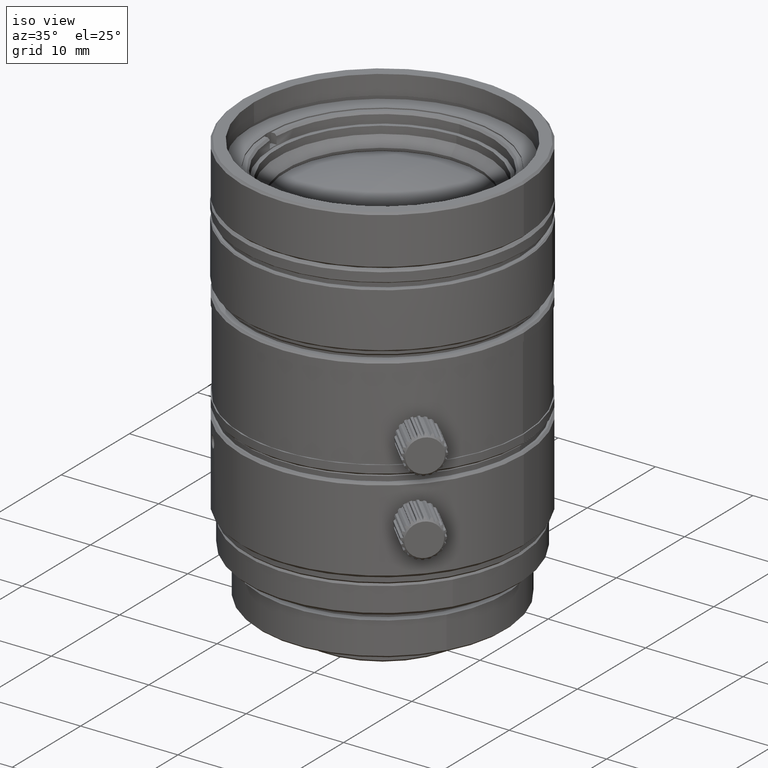
[diagram: clean part render]
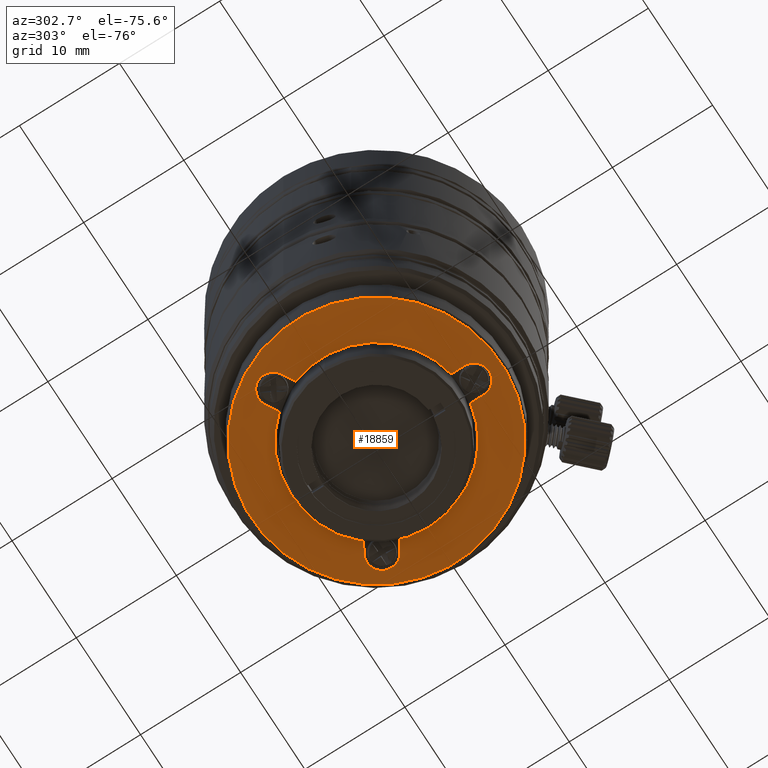
[diagram: tour spotlight — one face highlighted and labeled with its STEP entity id]
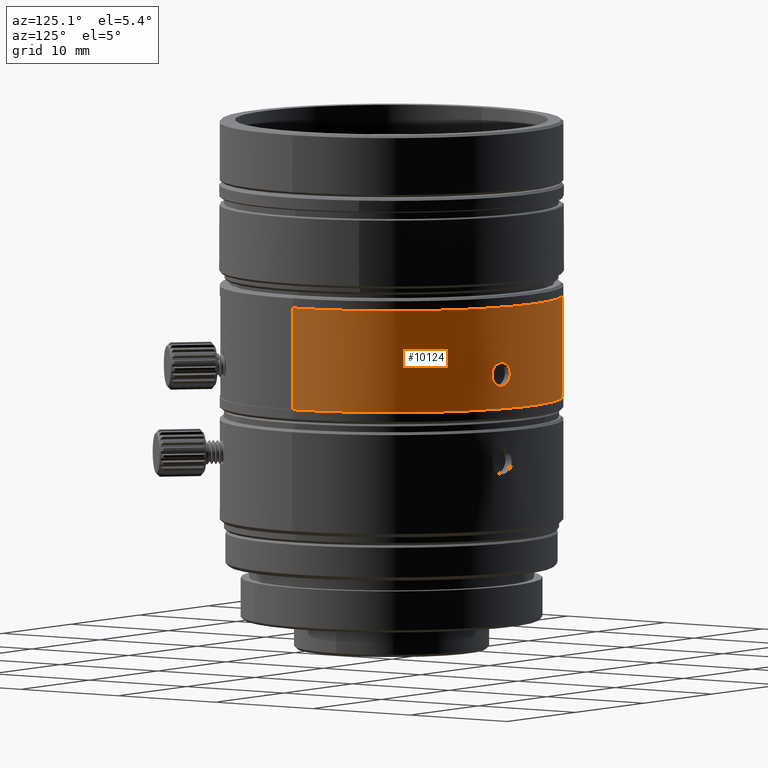
[diagram: tour spotlight — one face highlighted and labeled with its STEP entity id]
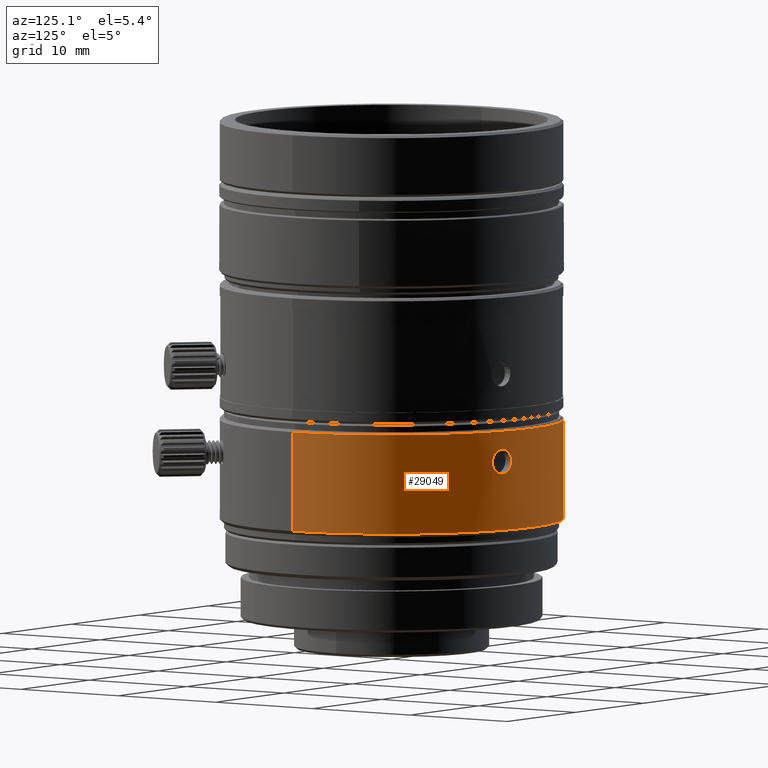
[diagram: tour spotlight — one face highlighted and labeled with its STEP entity id]
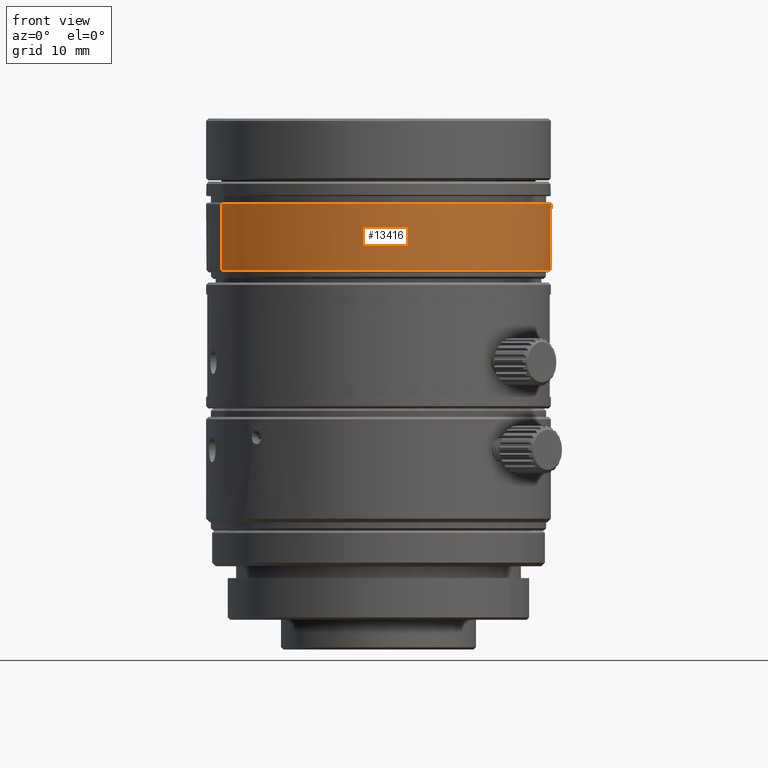
[diagram: tour spotlight — one face highlighted and labeled with its STEP entity id]
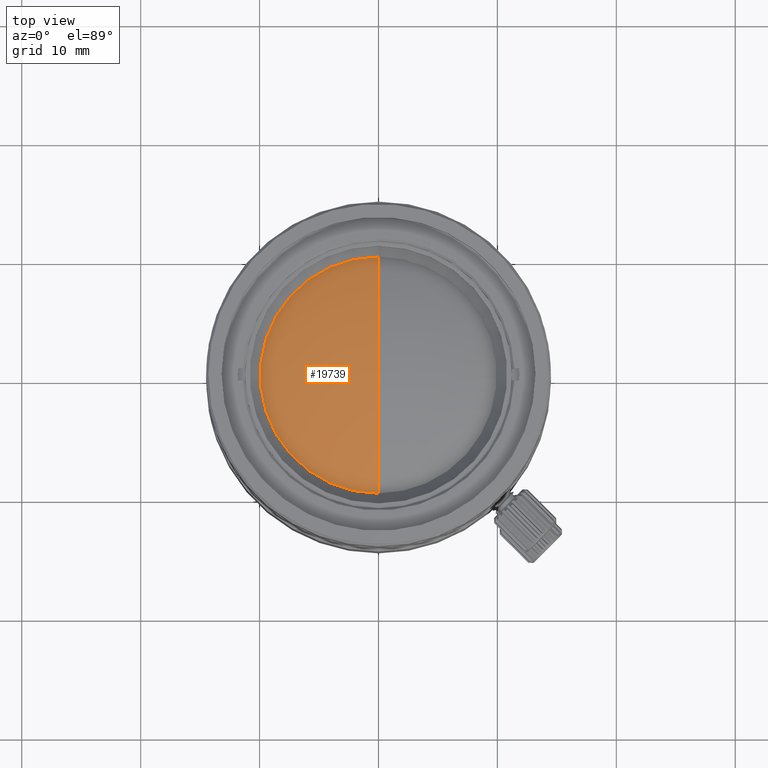
[diagram: tour spotlight — one face highlighted and labeled with its STEP entity id]
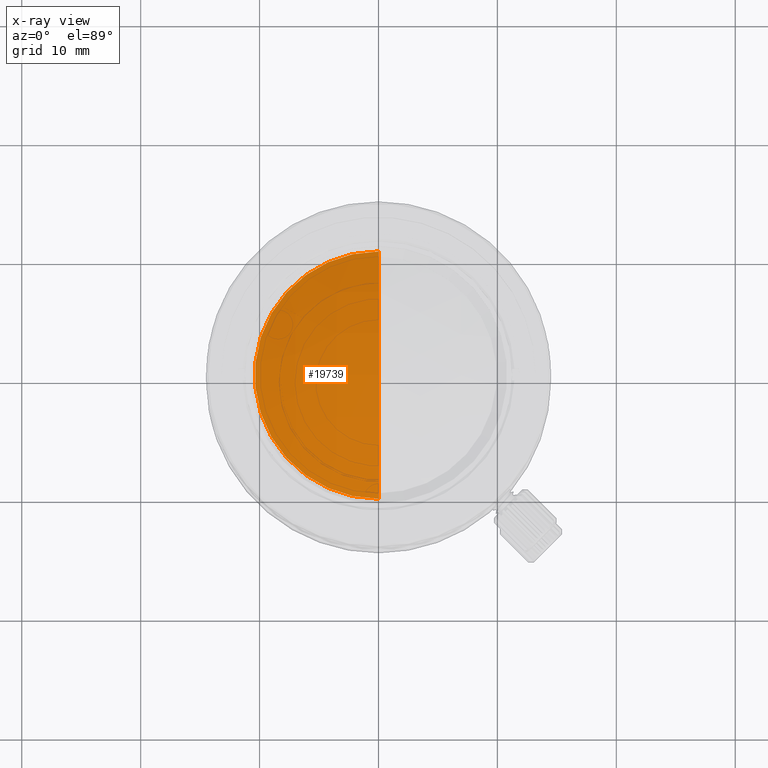
[diagram: x-ray of the same camera — body ghosted, this tour face saturated]
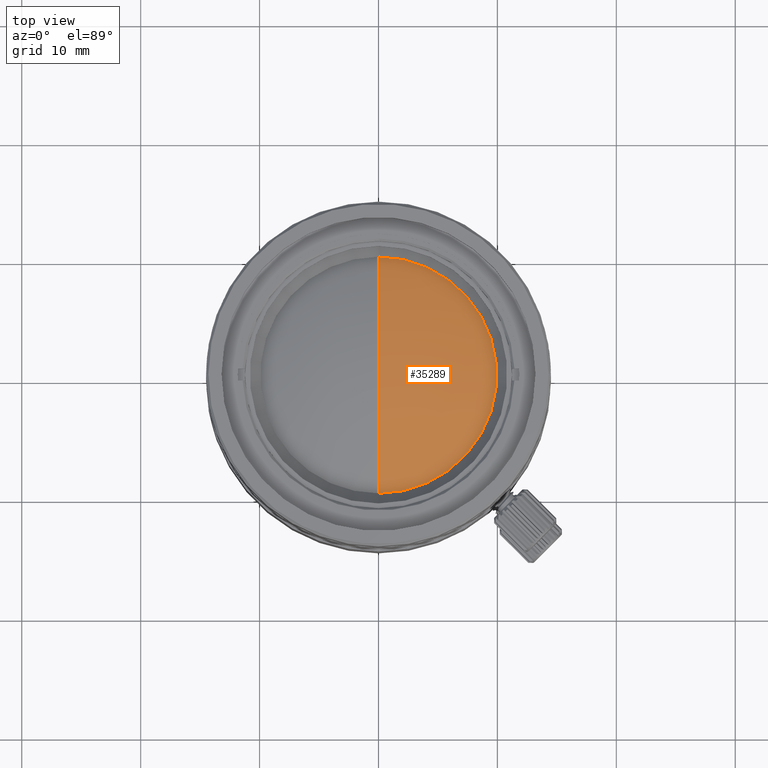
[diagram: tour spotlight — one face highlighted and labeled with its STEP entity id]
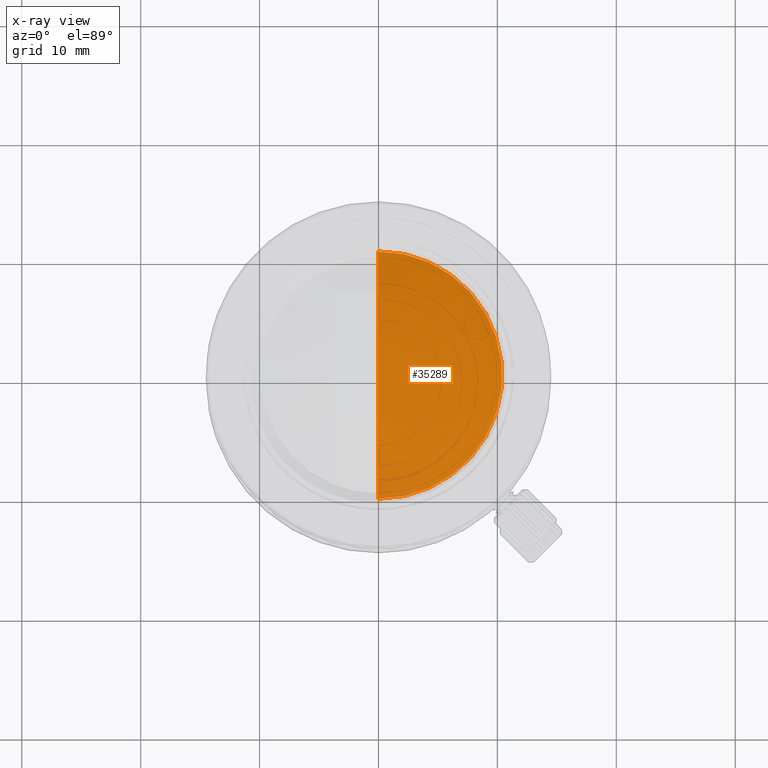
[diagram: x-ray of the same camera — body ghosted, this tour face saturated]
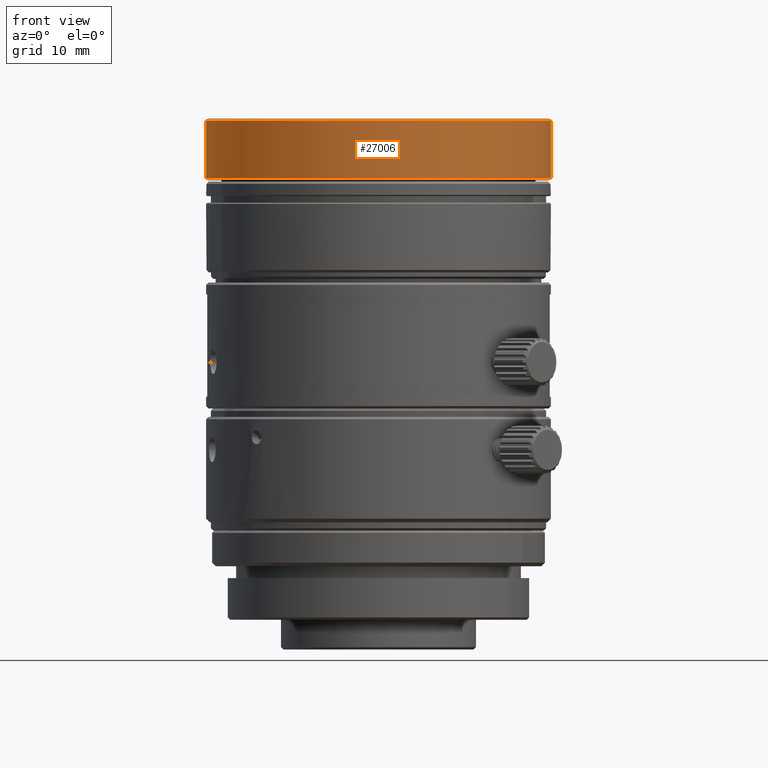
[diagram: tour spotlight — one face highlighted and labeled with its STEP entity id]
A machine part: a face-by-face anatomy tour. The part has 791 B-rep faces; the first image is the clean iso view, then the 7 largest visible faces are spotlighted one at a time (largest first), each with its STEP entity span.

Face 1 — auxiliary view, entity #18859. In plain terms, the highlighted planar face has unit normal (-0, 0, 1).
Definition (entity closure, byte-faithful):
#208 = LINE ( 'NONE', #28538, #14063 ) ;
#375 = VERTEX_POINT ( 'NONE', #8209 ) ;
#450 = AXIS2_PLACEMENT_3D ( 'NONE', #31039, #28272, #5823 ) ;
#703 = EDGE_CURVE ( 'NONE', #17642, #6617, #3531, .T. ) ;
#848 = CARTESIAN_POINT ( 'NONE',  ( -1.499999989605230066, -8.417392731693940533, -1.500000003210349986 ) ) ;
#994 = VECTOR ( 'NONE', #33310, 1000.000000000000000 ) ;
#1255 = DIRECTION ( 'NONE',  ( -0.8660254037844288266, 0.5000000000000169864, -1.804901988180169788E-09 ) ) ;
#1727 = AXIS2_PLACEMENT_3D ( 'NONE', #32045, #4424, #21547 ) ;
#1755 = EDGE_CURVE ( 'NONE', #9975, #375, #23453, .T. ) ;
#1884 = ORIENTED_EDGE ( 'NONE', *, *, #33475, .F. ) ;
#2248 = DIRECTION ( 'NONE',  ( -1.563090967240214876E-09, 9.024509907040500079E-10, 1.000000000000000000 ) ) ;
#2439 = CARTESIAN_POINT ( 'NONE',  ( 8.039675944474709013, 2.909658251168050214, -1.499999998521079903 ) ) ;
#2622 = FACE_BOUND ( 'NONE', #32340, .T. ) ;
#2804 = DIRECTION ( 'NONE',  ( 0.5000000000000169864, 0.8660254037844288266, 0.000000000000000000 ) ) ;
#2806 = CARTESIAN_POINT ( 'NONE',  ( -9.193747676503649657, 3.575961888322219728, -1.500000026059789882 ) ) ;
#2819 = EDGE_CURVE ( 'NONE', #6617, #24630, #29334, .T. ) ;
#3430 = CARTESIAN_POINT ( 'NONE',  ( -7.693747676503599919, 6.174038099675510871, -1.500000026059789882 ) ) ;
#3460 = VERTEX_POINT ( 'NONE', #2439 ) ;
#3531 = LINE ( 'NONE', #31511, #13370 ) ;
#4424 = DIRECTION ( 'NONE',  ( 1.563090947187625125E-09, -9.024509940901149827E-10, -1.000000000000000000 ) ) ;
#4463 = CARTESIAN_POINT ( 'NONE',  ( -1.499999989605930173, -9.750000006003089581, -1.500000002007739974 ) ) ;
#4628 = ORIENTED_EDGE ( 'NONE', *, *, #17917, .F. ) ;
#5208 = EDGE_CURVE ( 'NONE', #8727, #15106, #15417, .T. ) ;
#5532 = ORIENTED_EDGE ( 'NONE', *, *, #2819, .F. ) ;
#5744 = EDGE_CURVE ( 'NONE', #29337, #27687, #25563, .T. ) ;
#5823 = DIRECTION ( 'NONE',  ( -0.1754385961329090193, -0.9844903752637270689, 6.142278437451024630E-10 ) ) ;
#6617 = VERTEX_POINT ( 'NONE', #11583 ) ;
#7325 = CARTESIAN_POINT ( 'NONE',  ( -8.039675923685868142, 2.909658251168700360, -1.500000023654569858 ) ) ;
#7517 = ORIENTED_EDGE ( 'NONE', *, *, #703, .F. ) ;
#7646 = EDGE_CURVE ( 'NONE', #12292, #3460, #19156, .T. ) ;
#7754 = ORIENTED_EDGE ( 'NONE', *, *, #16910, .F. ) ;
#7759 = DIRECTION ( 'NONE',  ( -1.563090973105049703E-09, 9.024509940901154997E-10, 1.000000000000000000 ) ) ;
#7938 = DIRECTION ( 'NONE',  ( -0.5000000000000167644, -0.8660254037844290487, 0.000000000000000000 ) ) ;
#8209 = CARTESIAN_POINT ( 'NONE',  ( 6.539675944475539460, 5.507734462522110519, -1.500000003210349986 ) ) ;
#8390 = LINE ( 'NONE', #36367, #34818 ) ;
#8726 = DIRECTION ( 'NONE',  ( 1.563090973105050117E-09, -9.024509940901149827E-10, -1.000000000000000000 ) ) ;
#8727 = VERTEX_POINT ( 'NONE', #29704 ) ;
#8963 = CARTESIAN_POINT ( 'NONE',  ( 10.82532386254627887, -6.250003646106256028, -1.499999985900712041 ) ) ;
#9031 = DIRECTION ( 'NONE',  ( 0.8660254037844328234, 0.5000000000000099920, 9.024509940900368142E-10 ) ) ;
#9270 = CARTESIAN_POINT ( 'NONE',  ( -8.443747676503628341, 4.874999993998859971, -1.500000026059789882 ) ) ;
#9975 = VERTEX_POINT ( 'NONE', #23473 ) ;
#10425 = ORIENTED_EDGE ( 'NONE', *, *, #11286, .F. ) ;
#11138 = CARTESIAN_POINT ( 'NONE',  ( 1.039455505086109937E-08, -6.001299156721000143E-09, -1.500000008461999990 ) ) ;
#11286 = EDGE_CURVE ( 'NONE', #375, #14245, #208, .T. ) ;
#11583 = CARTESIAN_POINT ( 'NONE',  ( 1.500000010394439975, -9.750000005999890362, -1.499999997318470113 ) ) ;
#11604 = DIRECTION ( 'NONE',  ( 1.563090964902464946E-09, -9.024509871818749447E-10, -1.000000000000000000 ) ) ;
#11887 = ORIENTED_EDGE ( 'NONE', *, *, #7646, .F. ) ;
#12292 = VERTEX_POINT ( 'NONE', #16408 ) ;
#12559 = ORIENTED_EDGE ( 'NONE', *, *, #35291, .F. ) ;
#12594 = CARTESIAN_POINT ( 'NONE',  ( -8.443747676503628341, 4.874999993998859971, -1.500000026059789882 ) ) ;
#13370 = VECTOR ( 'NONE', #14390, 1000.000000000000000 ) ;
#13619 = AXIS2_PLACEMENT_3D ( 'NONE', #15351, #2248, #24508 ) ;
#14063 = VECTOR ( 'NONE', #9031, 1000.000000000000114 ) ;
#14245 = VERTEX_POINT ( 'NONE', #25504 ) ;
#14283 = EDGE_CURVE ( 'NONE', #14453, #8727, #26285, .T. ) ;
#14390 = DIRECTION ( 'NONE',  ( 0.000000000000000000, -1.000000000000000000, 9.024509940901149827E-10 ) ) ;
#14453 = VERTEX_POINT ( 'NONE', #848 ) ;
#14460 = ORIENTED_EDGE ( 'NONE', *, *, #1755, .F. ) ;
#15106 = VERTEX_POINT ( 'NONE', #2806 ) ;
#15351 = CARTESIAN_POINT ( 'NONE',  ( 1.039455505086109937E-08, -6.001299156721000143E-09, -1.500000008461999990 ) ) ;
#15417 = LINE ( 'NONE', #7325, #26751 ) ;
#15758 = AXIS2_PLACEMENT_3D ( 'NONE', #15989, #27216, #18396 ) ;
#15983 = EDGE_CURVE ( 'NONE', #14245, #12292, #21644, .T. ) ;
#15989 = CARTESIAN_POINT ( 'NONE',  ( 8.443747697292788956, 4.874999993998300418, -1.499999999663099937 ) ) ;
#16408 = CARTESIAN_POINT ( 'NONE',  ( 9.193747697293060739, 3.575961888321459892, -1.499999997318470113 ) ) ;
#16517 = ORIENTED_EDGE ( 'NONE', *, *, #5208, .F. ) ;
#16593 = CARTESIAN_POINT ( 'NONE',  ( -5.650003629620629297, -9.786093373456269617, -1.500000008461999990 ) ) ;
#16870 = EDGE_CURVE ( 'NONE', #15106, #27706, #27143, .T. ) ;
#16910 = EDGE_CURVE ( 'NONE', #27687, #29337, #34770, .T. ) ;
#17621 = CARTESIAN_POINT ( 'NONE',  ( -9.742785782180272136, 5.624999993998886616, -1.500000028767142890 ) ) ;
#17642 = VERTEX_POINT ( 'NONE', #34181 ) ;
#17917 = EDGE_CURVE ( 'NONE', #24630, #14453, #8390, .T. ) ;
#18270 = ORIENTED_EDGE ( 'NONE', *, *, #25930, .F. ) ;
#18396 = DIRECTION ( 'NONE',  ( -0.5000000000014805934, 0.8660254037835838359, -1.563090947185688902E-09 ) ) ;
#18436 = ORIENTED_EDGE ( 'NONE', *, *, #5744, .F. ) ;
#18859 = ADVANCED_FACE ( 'NONE', ( #19189, #2622 ), #32971, .F. ) ;
#19156 = LINE ( 'NONE', #32767, #994 ) ;
#19189 = FACE_OUTER_BOUND ( 'NONE', #29357, .T. ) ;
#19343 = CARTESIAN_POINT ( 'NONE',  ( -7.693747676503599919, 6.174038099675510871, -1.500000026059789882 ) ) ;
#19469 = ORIENTED_EDGE ( 'NONE', *, *, #14283, .F. ) ;
#19692 = AXIS2_PLACEMENT_3D ( 'NONE', #11138, #30475, #36341 ) ;
#20677 = AXIS2_PLACEMENT_3D ( 'NONE', #12594, #34852, #7938 ) ;
#20774 = VECTOR ( 'NONE', #32943, 1000.000000000000114 ) ;
#20794 = CARTESIAN_POINT ( 'NONE',  ( 1.039455505086109937E-08, -6.001299156721000143E-09, -1.500000008461999990 ) ) ;
#21262 = ORIENTED_EDGE ( 'NONE', *, *, #16870, .F. ) ;
#21547 = DIRECTION ( 'NONE',  ( 1.000000000000000000, 2.145274698624651575E-12, 1.563090947185689523E-09 ) ) ;
#21644 = CIRCLE ( 'NONE', #15758, 1.500000000000000444 ) ;
#22401 = ORIENTED_EDGE ( 'NONE', *, *, #15983, .F. ) ;
#22828 = VERTEX_POINT ( 'NONE', #3430 ) ;
#23453 = CIRCLE ( 'NONE', #31663, 8.550000017458998514 ) ;
#23473 = CARTESIAN_POINT ( 'NONE',  ( -6.539675923685819292, 5.507734462521990615, -1.500000023654569858 ) ) ;
#24508 = DIRECTION ( 'NONE',  ( 0.8660254037844289376, -0.5000000000000168754, 1.804901981408044595E-09 ) ) ;
#24630 = VERTEX_POINT ( 'NONE', #4463 ) ;
#25305 = DIRECTION ( 'NONE',  ( 1.563090975711084911E-09, -9.024509931469589954E-10, -1.000000000000000000 ) ) ;
#25319 = DIRECTION ( 'NONE',  ( 5.001554725936329584E-14, 1.000000000000000000, -9.024509940900369176E-10 ) ) ;
#25486 = DIRECTION ( 'NONE',  ( 0.9403129728261411246, 0.3403109065764201024, 1.162680806549971579E-09 ) ) ;
#25504 = CARTESIAN_POINT ( 'NONE',  ( 7.693747697292019794, 6.174038099674279856, -1.500000002007739974 ) ) ;
#25557 = CIRCLE ( 'NONE', #26166, 1.499999999999999778 ) ;
#25563 = CIRCLE ( 'NONE', #19692, 12.50000728003000106 ) ;
#25836 = DIRECTION ( 'NONE',  ( -0.5000000000000167644, -0.8660254037844290487, 0.000000000000000000 ) ) ;
#25930 = EDGE_CURVE ( 'NONE', #22828, #9975, #33128, .T. ) ;
#26166 = AXIS2_PLACEMENT_3D ( 'NONE', #9270, #8726, #25836 ) ;
#26285 = CIRCLE ( 'NONE', #450, 8.550000017459000290 ) ;
#26751 = VECTOR ( 'NONE', #1255, 1000.000000000000114 ) ;
#27143 = CIRCLE ( 'NONE', #20677, 1.499999999999999778 ) ;
#27216 = DIRECTION ( 'NONE',  ( 1.563090960144579965E-09, -9.024509716419240477E-10, -1.000000000000000000 ) ) ;
#27687 = VERTEX_POINT ( 'NONE', #8963 ) ;
#27706 = VERTEX_POINT ( 'NONE', #17621 ) ;
#28078 = CARTESIAN_POINT ( 'NONE',  ( 1.039455505086109937E-08, -6.001299156721000143E-09, -1.500000008461999990 ) ) ;
#28272 = DIRECTION ( 'NONE',  ( 1.563090971023334920E-09, -9.024510057718559306E-10, -1.000000000000000000 ) ) ;
#28538 = CARTESIAN_POINT ( 'NONE',  ( 6.539675944475039415, 5.507734462521240104, -1.500000003210349986 ) ) ;
#29334 = CIRCLE ( 'NONE', #1727, 1.500000000000000000 ) ;
#29337 = VERTEX_POINT ( 'NONE', #34991 ) ;
#29357 = EDGE_LOOP ( 'NONE', ( #7754, #18436 ) ) ;
#29580 = AXIS2_PLACEMENT_3D ( 'NONE', #16593, #7759, #2804 ) ;
#29704 = CARTESIAN_POINT ( 'NONE',  ( -8.039675923685868142, 2.909658251168700360, -1.500000023654569858 ) ) ;
#30475 = DIRECTION ( 'NONE',  ( -1.563090967240214876E-09, 9.024509907040500079E-10, 1.000000000000000000 ) ) ;
#30944 = CIRCLE ( 'NONE', #36238, 8.550000017458998514 ) ;
#31039 = CARTESIAN_POINT ( 'NONE',  ( 1.039455505086109937E-08, -6.001299156721000143E-09, -1.500000008461999990 ) ) ;
#31511 = CARTESIAN_POINT ( 'NONE',  ( 1.500000010394489935, -8.417392731693841057, -1.499999998521079903 ) ) ;
#31663 = AXIS2_PLACEMENT_3D ( 'NONE', #20794, #11604, #34220 ) ;
#32045 = CARTESIAN_POINT ( 'NONE',  ( 1.039450561124200094E-08, -9.750000006001060981, -1.499999999663099937 ) ) ;
#32340 = EDGE_LOOP ( 'NONE', ( #19469, #4628, #5532, #7517, #1884, #11887, #22401, #10425, #14460, #18270, #12559, #21262, #16517 ) ) ;
#32767 = CARTESIAN_POINT ( 'NONE',  ( 9.193747697293060739, 3.575961888321459892, -1.499999997318470113 ) ) ;
#32943 = DIRECTION ( 'NONE',  ( 0.8660254037844288266, -0.5000000000000169864, 1.804901988180169788E-09 ) ) ;
#32971 = PLANE ( 'NONE',  #29580 ) ;
#33128 = LINE ( 'NONE', #19343, #20774 ) ;
#33310 = DIRECTION ( 'NONE',  ( -0.8660254037844578034, -0.4999999999999668598, -9.024509940901147759E-10 ) ) ;
#33475 = EDGE_CURVE ( 'NONE', #3460, #17642, #30944, .T. ) ;
#34181 = CARTESIAN_POINT ( 'NONE',  ( 1.500000010394489935, -8.417392731693841057, -1.499999998521079903 ) ) ;
#34220 = DIRECTION ( 'NONE',  ( -0.7648743766931350718, 0.6441794686873281162, -1.776908624933619784E-09 ) ) ;
#34770 = CIRCLE ( 'NONE', #13619, 12.50000728003000106 ) ;
#34818 = VECTOR ( 'NONE', #25319, 1000.000000000000000 ) ;
#34852 = DIRECTION ( 'NONE',  ( 1.563090973105050117E-09, -9.024509940901149827E-10, -1.000000000000000000 ) ) ;
#34991 = CARTESIAN_POINT ( 'NONE',  ( -10.82532384175716800, 6.250003634103659778, -1.500000031023287939 ) ) ;
#35291 = EDGE_CURVE ( 'NONE', #27706, #22828, #25557, .T. ) ;
#36238 = AXIS2_PLACEMENT_3D ( 'NONE', #28078, #25305, #25486 ) ;
#36341 = DIRECTION ( 'NONE',  ( 0.8660254037844289376, -0.5000000000000168754, 1.804901981408044595E-09 ) ) ;
#36367 = CARTESIAN_POINT ( 'NONE',  ( -1.499999989605430128, -9.750000006002229824, -1.500000002007739974 ) ) ;

Face 2 — auxiliary view, entity #10124. In plain terms, the highlighted cylindrical surface (partial cylindrical patch) has radius 14.4 mm, axis along (0, 0, 1).
Definition (entity closure, byte-faithful):
#237 = CARTESIAN_POINT ( 'NONE',  ( 2.988483085515753146, 14.08660843759395576, 19.50617703239385392 ) ) ;
#246 = ORIENTED_EDGE ( 'NONE', *, *, #35015, .F. ) ;
#535 = CARTESIAN_POINT ( 'NONE',  ( 4.375833266885639006, 13.71872126114200086, 19.42694317934259729 ) ) ;
#755 = VERTEX_POINT ( 'NONE', #6653 ) ;
#887 = CARTESIAN_POINT ( 'NONE',  ( 3.291848969250373180, 14.01916338048096478, 19.26220819986514243 ) ) ;
#1083 = CARTESIAN_POINT ( 'NONE',  ( 4.498418253187060678, 13.67934916921509902, 19.56483815915400015 ) ) ;
#1238 = CARTESIAN_POINT ( 'NONE',  ( 3.191301756128427591, 14.04223089047203743, 19.32142937053410137 ) ) ;
#1437 = CARTESIAN_POINT ( 'NONE',  ( 4.479093245161629433, 13.68569286200309953, 19.53894270548649814 ) ) ;
#1809 = CARTESIAN_POINT ( 'NONE',  ( 4.611888604103349998, 13.64150408841929973, 20.55997250558879941 ) ) ;
#3087 = DIRECTION ( 'NONE',  ( 0.000000000000000000, 0.000000000000000000, 1.000000000000000000 ) ) ;
#3173 = CARTESIAN_POINT ( 'NONE',  ( 2.775386559164058742, 14.13005686063147159, 19.87745878774617836 ) ) ;
#3547 = ORIENTED_EDGE ( 'NONE', *, *, #20545, .F. ) ;
#3718 = VECTOR ( 'NONE', #23234, 1000.000000000000000 ) ;
#3753 = CARTESIAN_POINT ( 'NONE',  ( 3.100343883418299917, 14.06218825294302022, 20.92877669442735211 ) ) ;
#3814 = CARTESIAN_POINT ( 'NONE',  ( 3.100335220521309942, 14.06215982246964025, 19.39971785057074882 ) ) ;
#3829 = CARTESIAN_POINT ( 'NONE',  ( 4.570146642732879627, 13.65554792225239922, 20.64816666711750415 ) ) ;
#3897 = ORIENTED_EDGE ( 'NONE', *, *, #12724, .T. ) ;
#3930 = CARTESIAN_POINT ( 'NONE',  ( 3.844132833113405034, 13.87792272049254372, 21.16395070604456663 ) ) ;
#3938 = ORIENTED_EDGE ( 'NONE', *, *, #17699, .T. ) ;
#4366 = CARTESIAN_POINT ( 'NONE',  ( 4.685850437871990515, 13.61627016984439997, 20.27570940254040011 ) ) ;
#5221 = FACE_OUTER_BOUND ( 'NONE', #34512, .T. ) ;
#5482 = CIRCLE ( 'NONE', #12521, 14.40000000000000036 ) ;
#5929 = CARTESIAN_POINT ( 'NONE',  ( 2.853443673566047778, 14.11444020234010921, 19.71130598501521547 ) ) ;
#6153 = CARTESIAN_POINT ( 'NONE',  ( 3.287355598790710154, 14.02019109099875038, 21.06329503536958470 ) ) ;
#6243 = AXIS2_PLACEMENT_3D ( 'NONE', #27590, #3087, #31074 ) ;
#6593 = CARTESIAN_POINT ( 'NONE',  ( 4.387736897426179894, 13.71523972945219860, 19.43768583425319818 ) ) ;
#6653 = CARTESIAN_POINT ( 'NONE',  ( 4.349180586900379453, 13.72749187745360011, 20.92582474184870023 ) ) ;
#6756 = EDGE_CURVE ( 'NONE', #20125, #7147, #18202, .T. ) ;
#6777 = CARTESIAN_POINT ( 'NONE',  ( 4.375833266885639006, 13.71872126114200086, 19.42694317934259729 ) ) ;
#6847 = CARTESIAN_POINT ( 'NONE',  ( 14.40000000000000036, 0.000000000000000000, -2.485699991965000244 ) ) ;
#6863 = CARTESIAN_POINT ( 'NONE',  ( 0.000000000000000000, 0.000000000000000000, 25.86419849398000181 ) ) ;
#7138 = CARTESIAN_POINT ( 'NONE',  ( 4.652837275555340213, 13.62759020419879796, 19.88549708406090133 ) ) ;
#7147 = VERTEX_POINT ( 'NONE', #31056 ) ;
#7618 = B_SPLINE_CURVE_WITH_KNOTS ( 'NONE', 3,
 ( #20685, #31554, #26393, #12222, #3930, #28963, #31730, #6153, #25852, #3753 ),
 .UNSPECIFIED., .F., .F.,
 ( 4, 2, 2, 2, 4 ),
 ( 0.000000000000000000, 0.2499999999999995559, 0.4999999999999991118, 0.7499999999999995559, 1.000000000000000000 ),
 .UNSPECIFIED. ) ;
#8568 = VECTOR ( 'NONE', #20955, 1000.000000000000000 ) ;
#8611 = EDGE_CURVE ( 'NONE', #755, #13475, #7618, .T. ) ;
#8699 = CARTESIAN_POINT ( 'NONE',  ( 2.904131455834194853, 14.10416554255359678, 19.62206063377927023 ) ) ;
#9190 = CIRCLE ( 'NONE', #6243, 14.40000000000000036 ) ;
#9530 = CARTESIAN_POINT ( 'NONE',  ( 4.551248720609540221, 13.66185930818290117, 19.64621479913310154 ) ) ;
#9705 = CARTESIAN_POINT ( 'NONE',  ( 4.193411284404140460, 13.77636254884284206, 19.28132868682401835 ) ) ;
#9720 = CARTESIAN_POINT ( 'NONE',  ( 4.633027997720560620, 13.63433757295160120, 19.82323373516350173 ) ) ;
#9953 = ORIENTED_EDGE ( 'NONE', *, *, #6756, .T. ) ;
#10124 = ADVANCED_FACE ( 'NONE', ( #19221, #5221 ), #16457, .T. ) ;
#10449 = ORIENTED_EDGE ( 'NONE', *, *, #23676, .T. ) ;
#11243 = ORIENTED_EDGE ( 'NONE', *, *, #8611, .T. ) ;
#11453 = CARTESIAN_POINT ( 'NONE',  ( 2.923698264530795843, 14.10014075232072628, 19.59270081601888691 ) ) ;
#12103 = CARTESIAN_POINT ( 'NONE',  ( 4.290367879180737809, 13.74630023679806357, 19.34510784788073323 ) ) ;
#12222 = CARTESIAN_POINT ( 'NONE',  ( 3.953837265942142576, 13.84700533088139629, 21.14330489512659028 ) ) ;
#12298 = CARTESIAN_POINT ( 'NONE',  ( 4.661313560633549180, 13.62469119107350046, 19.91717754107030203 ) ) ;
#12521 = AXIS2_PLACEMENT_3D ( 'NONE', #6863, #18094, #35185 ) ;
#12656 = CARTESIAN_POINT ( 'NONE',  ( 4.441940701722869811, 13.69779921500640008, 20.83460655372680037 ) ) ;
#12724 = EDGE_CURVE ( 'NONE', #35167, #20125, #9190, .T. ) ;
#12850 = CARTESIAN_POINT ( 'NONE',  ( 4.554424180936759825, 13.66080309202719967, 20.67660908689679999 ) ) ;
#13475 = VERTEX_POINT ( 'NONE', #13506 ) ;
#13506 = CARTESIAN_POINT ( 'NONE',  ( 3.100343883418299917, 14.06218825294302022, 20.92877669442735211 ) ) ;
#13638 = CARTESIAN_POINT ( 'NONE',  ( 2.831866041691839975, 14.11879068724418751, 20.57194958514154948 ) ) ;
#13669 = DIRECTION ( 'NONE',  ( 1.000000000000000000, 0.000000000000000000, 0.000000000000000000 ) ) ;
#14388 = CARTESIAN_POINT ( 'NONE',  ( 2.744832960927321430, 14.13595365999908715, 20.16447552433148971 ) ) ;
#14503 = CARTESIAN_POINT ( 'NONE',  ( 3.975895444416330360, 13.84070513710905814, 19.19034641888828219 ) ) ;
#15058 = CARTESIAN_POINT ( 'NONE',  ( 4.397161189495790268, 13.71222541685430052, 20.88165227385739797 ) ) ;
#15243 = CARTESIAN_POINT ( 'NONE',  ( 4.691085887882880279, 13.61446733656079999, 20.21024567169100195 ) ) ;
#15411 = CARTESIAN_POINT ( 'NONE',  ( 4.621671542677139755, 13.63819388696269996, 19.79257630541980006 ) ) ;
#15609 = CARTESIAN_POINT ( 'NONE',  ( 4.373611379449179992, 13.71975498093980050, 20.90421242090049603 ) ) ;
#15796 = CARTESIAN_POINT ( 'NONE',  ( 4.688468664093139893, 13.61536919984080107, 20.07879120056830047 ) ) ;
#16457 = CYLINDRICAL_SURFACE ( 'NONE', #20314, 14.40000000000000036 ) ;
#16986 = CARTESIAN_POINT ( 'NONE',  ( 3.100335220521309942, 14.06215982246964025, 19.39971785057074882 ) ) ;
#17154 = CARTESIAN_POINT ( 'NONE',  ( 2.846906043058707425, 14.11575146354594068, 19.72433630330141696 ) ) ;
#17699 = EDGE_CURVE ( 'NONE', #31641, #20285, #26614, .T. ) ;
#17827 = B_SPLINE_CURVE_WITH_KNOTS ( 'NONE', 3,
 ( #6777, #18196, #6593, #24088, #26469, #1437, #1083, #32343, #9530, #29593, #20763, #15411, #9720, #7138, #12298, #31980, #23708, #15796, #26286, #24251, #15243, #4366, #18012, #23534, #29041, #20587, #34913, #1809, #18374, #3829, #12850, #21132, #32165, #31800, #12656, #21304, #15058, #15609, #17828, #35105 ),
 .UNSPECIFIED., .F., .F.,
 ( 4, 2, 2, 2, 2, 2, 2, 2, 2, 2, 2, 2, 2, 2, 2, 2, 2, 2, 2, 4 ),
 ( 1.688995572155780427E-14, 0.01443735972399384608, 0.07233123859846217474, 0.1302188625153537227, 0.1881010474709477465, 0.2459802907351127388, 0.3038593106034207514, 0.3617409505486037791, 0.4196281075540897465, 0.4775236047045577914, 0.5354252119733448056, 0.5933173778929068387, 0.6512022522043678929, 0.7090827424116338262, 0.7669617618031608908, 0.8248421384301679593, 0.8827265465039320080, 0.9410672401018249644, 0.9704939621304484731, 1.000000000000000000 ),
 .UNSPECIFIED. ) ;
#17828 = CARTESIAN_POINT ( 'NONE',  ( 4.361533536387990573, 13.72359984164929969, 20.91519095810389928 ) ) ;
#18012 = CARTESIAN_POINT ( 'NONE',  ( 4.681623094019069953, 13.61772529496750117, 20.30833692066699925 ) ) ;
#18094 = DIRECTION ( 'NONE',  ( 0.000000000000000000, 0.000000000000000000, -1.000000000000000000 ) ) ;
#18196 = CARTESIAN_POINT ( 'NONE',  ( 4.381960350238310653, 13.71708646494709960, 19.43216229226170100 ) ) ;
#18202 = LINE ( 'NONE', #34570, #8568 ) ;
#18374 = CARTESIAN_POINT ( 'NONE',  ( 4.598861767632469899, 13.64590414115710004, 20.58988279849029723 ) ) ;
#18553 = CARTESIAN_POINT ( 'NONE',  ( 2.744832960927321430, 14.13595365999908715, 20.16447552433148971 ) ) ;
#18805 = EDGE_CURVE ( 'NONE', #7147, #19944, #5482, .T. ) ;
#19002 = CARTESIAN_POINT ( 'NONE',  ( 2.775911301203263015, 14.12988406671720298, 20.41379569079840905 ) ) ;
#19221 = FACE_BOUND ( 'NONE', #23141, .T. ) ;
#19931 = CARTESIAN_POINT ( 'NONE',  ( 2.877622106799853086, 14.10956189877083311, 19.66652755088515647 ) ) ;
#19944 = VERTEX_POINT ( 'NONE', #26437 ) ;
#20125 = VERTEX_POINT ( 'NONE', #25481 ) ;
#20285 = VERTEX_POINT ( 'NONE', #20332 ) ;
#20314 = AXIS2_PLACEMENT_3D ( 'NONE', #27674, #33371, #13669 ) ;
#20332 = CARTESIAN_POINT ( 'NONE',  ( 4.375833266885639006, 13.71872126114200086, 19.42694317934259729 ) ) ;
#20545 = EDGE_CURVE ( 'NONE', #31641, #22494, #26370, .T. ) ;
#20587 = CARTESIAN_POINT ( 'NONE',  ( 4.645330452937090016, 13.63015005077529906, 20.46793515645120110 ) ) ;
#20685 = CARTESIAN_POINT ( 'NONE',  ( 4.349180586900379453, 13.72749187745360011, 20.92582474184870023 ) ) ;
#20763 = CARTESIAN_POINT ( 'NONE',  ( 4.596225729697540174, 13.64679044281000131, 19.73263317738580014 ) ) ;
#20955 = DIRECTION ( 'NONE',  ( 0.000000000000000000, 0.000000000000000000, 1.000000000000000000 ) ) ;
#21132 = CARTESIAN_POINT ( 'NONE',  ( 4.520429756115649234, 13.67208965684159949, 20.73167075877509902 ) ) ;
#21304 = CARTESIAN_POINT ( 'NONE',  ( 4.408641716298480340, 13.70853806969549993, 20.87006390419769986 ) ) ;
#21375 = EDGE_CURVE ( 'NONE', #35167, #19944, #28762, .T. ) ;
#21764 = CARTESIAN_POINT ( 'NONE',  ( 2.823546116938006278, 14.12045219651623640, 20.55290442138235818 ) ) ;
#21942 = CARTESIAN_POINT ( 'NONE',  ( 2.979567212751979000, 14.08891162625923599, 20.82682039208309277 ) ) ;
#22494 = VERTEX_POINT ( 'NONE', #18553 ) ;
#23141 = EDGE_LOOP ( 'NONE', ( #11243, #246, #3547, #3938, #10449 ) ) ;
#23148 = CARTESIAN_POINT ( 'NONE',  ( 3.515218359225547928, 13.96482908638472153, 19.18094104247426301 ) ) ;
#23234 = DIRECTION ( 'NONE',  ( 0.000000000000000000, 0.000000000000000000, 1.000000000000000000 ) ) ;
#23534 = CARTESIAN_POINT ( 'NONE',  ( 4.670116666162120289, 13.62167564297250166, 20.37289237840839817 ) ) ;
#23676 = EDGE_CURVE ( 'NONE', #20285, #755, #17827, .T. ) ;
#23708 = CARTESIAN_POINT ( 'NONE',  ( 4.680703015541331169, 13.61804083338010152, 20.01361324868559777 ) ) ;
#24034 = ORIENTED_EDGE ( 'NONE', *, *, #21375, .F. ) ;
#24088 = CARTESIAN_POINT ( 'NONE',  ( 4.416302246190360492, 13.70608808472919904, 19.46570930783260067 ) ) ;
#24251 = CARTESIAN_POINT ( 'NONE',  ( 4.692095494214330031, 13.61411915469490097, 20.17732111861160149 ) ) ;
#24702 = CARTESIAN_POINT ( 'NONE',  ( 2.785677759346394389, 14.12796490823490103, 20.44895565261973047 ) ) ;
#24903 = CARTESIAN_POINT ( 'NONE',  ( 2.744778618852822039, 14.13591314504970420, 20.02108690108336120 ) ) ;
#25243 = CARTESIAN_POINT ( 'NONE',  ( 3.100335220521309942, 14.06215982246964025, 19.39971785057074882 ) ) ;
#25481 = CARTESIAN_POINT ( 'NONE',  ( -14.40000000000000036, 1.763491390772188461E-15, 17.25533443586000004 ) ) ;
#25852 = CARTESIAN_POINT ( 'NONE',  ( 3.188845817932329130, 14.04277206603646277, 21.00484045306396652 ) ) ;
#26286 = CARTESIAN_POINT ( 'NONE',  ( 4.690778616362229592, 13.61457294435889942, 20.11163752630279689 ) ) ;
#26370 = B_SPLINE_CURVE_WITH_KNOTS ( 'NONE', 3,
 ( #16986, #33539, #237, #11453, #8699, #19931, #31152, #5929, #17154, #3173, #24903, #14388 ),
 .UNSPECIFIED., .F., .F.,
 ( 4, 2, 2, 2, 2, 4 ),
 ( 0.000000000000000000, 0.1250992525833883040, 0.1876488788750850234, 0.2189236920209308990, 0.2501985051667767745, 0.5003970103335182440 ),
 .UNSPECIFIED. ) ;
#26393 = CARTESIAN_POINT ( 'NONE',  ( 4.167387119755625591, 13.78423992656489006, 21.06118545274519960 ) ) ;
#26437 = CARTESIAN_POINT ( 'NONE',  ( 14.40000000000000036, 0.000000000000000000, 25.86419849398000181 ) ) ;
#26469 = CARTESIAN_POINT ( 'NONE',  ( 4.438065485963949897, 13.69905252961800102, 19.48940622722449945 ) ) ;
#26614 = B_SPLINE_CURVE_WITH_KNOTS ( 'NONE', 3,
 ( #3814, #1238, #887, #23148, #34902, #28484, #14503, #9705, #12103, #535 ),
 .UNSPECIFIED., .F., .F.,
 ( 4, 2, 2, 2, 4 ),
 ( 0.000000000000000000, 0.2500000000000000000, 0.5000000000000000000, 0.7500000000000000000, 1.000000000000000000 ),
 .UNSPECIFIED. ) ;
#27590 = CARTESIAN_POINT ( 'NONE',  ( 0.000000000000000000, 0.000000000000000000, 17.25533443586000004 ) ) ;
#27643 = CARTESIAN_POINT ( 'NONE',  ( 2.744805750071580785, 14.13594699135308375, 20.23605609022571272 ) ) ;
#27674 = CARTESIAN_POINT ( 'NONE',  ( 0.000000000000000000, 0.000000000000000000, -2.485699991965000244 ) ) ;
#28484 = CARTESIAN_POINT ( 'NONE',  ( 3.864225110349086556, 13.87236971339076419, 19.16697823971184889 ) ) ;
#28762 = LINE ( 'NONE', #6847, #3718 ) ;
#28963 = CARTESIAN_POINT ( 'NONE',  ( 3.614779347333181292, 13.93942131312047117, 21.16442277721783327 ) ) ;
#29041 = CARTESIAN_POINT ( 'NONE',  ( 4.662823774343510586, 13.62417556702629895, 20.40490214561679849 ) ) ;
#29593 = CARTESIAN_POINT ( 'NONE',  ( 4.582106270461609121, 13.65154082082110065, 19.70327675411259705 ) ) ;
#30889 = B_SPLINE_CURVE_WITH_KNOTS ( 'NONE', 3,
 ( #35359, #27643, #32799, #19002, #24702, #35736, #32609, #21764, #13638, #35908, #21942, #33344 ),
 .UNSPECIFIED., .F., .F.,
 ( 4, 2, 2, 2, 2, 4 ),
 ( 0.5003970103335182440, 0.6252977577501401818, 0.6877481314584541483, 0.7189733183126083560, 0.7501985051667625637, 1.000000000000000000 ),
 .UNSPECIFIED. ) ;
#31056 = CARTESIAN_POINT ( 'NONE',  ( -14.40000000000000036, 1.763491390772188461E-15, 25.86419849398000181 ) ) ;
#31074 = DIRECTION ( 'NONE',  ( -1.000000000000000000, 0.000000000000000000, 0.000000000000000000 ) ) ;
#31152 = CARTESIAN_POINT ( 'NONE',  ( 2.869258913476859352, 14.11125397637773027, 19.68142189888045834 ) ) ;
#31554 = CARTESIAN_POINT ( 'NONE',  ( 4.263144775413659104, 13.75477155309933508, 21.00251680750134042 ) ) ;
#31641 = VERTEX_POINT ( 'NONE', #25243 ) ;
#31730 = CARTESIAN_POINT ( 'NONE',  ( 3.504351883880004515, 13.96753317286083984, 21.14465487457431792 ) ) ;
#31800 = CARTESIAN_POINT ( 'NONE',  ( 4.462906656086420121, 13.69097852909719926, 20.80979983321929794 ) ) ;
#31980 = CARTESIAN_POINT ( 'NONE',  ( 4.675238075981349439, 13.61991935003770138, 19.98119584374179780 ) ) ;
#32165 = CARTESIAN_POINT ( 'NONE',  ( 4.502116106579639343, 13.67813484511849964, 20.75835648827150237 ) ) ;
#32343 = CARTESIAN_POINT ( 'NONE',  ( 4.534473476003349823, 13.66743980149819926, 19.61844136188459942 ) ) ;
#32609 = CARTESIAN_POINT ( 'NONE',  ( 2.809740476263986597, 14.12320029873398219, 20.51848579874740608 ) ) ;
#32799 = CARTESIAN_POINT ( 'NONE',  ( 2.752526822136097895, 14.13446129727708112, 20.30766653521825660 ) ) ;
#33110 = ORIENTED_EDGE ( 'NONE', *, *, #18805, .T. ) ;
#33344 = CARTESIAN_POINT ( 'NONE',  ( 3.100343883418299917, 14.06218825294302022, 20.92877669442735211 ) ) ;
#33371 = DIRECTION ( 'NONE',  ( 0.000000000000000000, 0.000000000000000000, 1.000000000000000000 ) ) ;
#33539 = CARTESIAN_POINT ( 'NONE',  ( 3.039818960348577015, 14.07562828759656171, 19.45051105627955224 ) ) ;
#34512 = EDGE_LOOP ( 'NONE', ( #3897, #9953, #33110, #24034 ) ) ;
#34570 = CARTESIAN_POINT ( 'NONE',  ( -14.40000000000000036, 1.763491390772188461E-15, -2.485699991965000244 ) ) ;
#34902 = CARTESIAN_POINT ( 'NONE',  ( 3.628681880002348148, 13.93583671625770570, 19.16187233365905129 ) ) ;
#34913 = CARTESIAN_POINT ( 'NONE',  ( 4.635109270899519629, 13.63363166375779834, 20.49903468693040054 ) ) ;
#35015 = EDGE_CURVE ( 'NONE', #22494, #13475, #30889, .T. ) ;
#35105 = CARTESIAN_POINT ( 'NONE',  ( 4.349180586900379453, 13.72749187745360011, 20.92582474184870023 ) ) ;
#35167 = VERTEX_POINT ( 'NONE', #35280 ) ;
#35185 = DIRECTION ( 'NONE',  ( 1.000000000000000000, 0.000000000000000000, 0.000000000000000000 ) ) ;
#35280 = CARTESIAN_POINT ( 'NONE',  ( 14.40000000000000036, 0.000000000000000000, 17.25533443586000004 ) ) ;
#35359 = CARTESIAN_POINT ( 'NONE',  ( 2.744832960927321430, 14.13595365999908715, 20.16447552433148971 ) ) ;
#35736 = CARTESIAN_POINT ( 'NONE',  ( 2.803347189335132050, 14.12446869669004101, 20.50116930192624309 ) ) ;
#35908 = CARTESIAN_POINT ( 'NONE',  ( 2.895052479766450748, 14.10613340206123212, 20.70722819830905692 ) ) ;

Face 3 — auxiliary view, entity #29049. In plain terms, the highlighted cylindrical surface (partial cylindrical patch) has radius 14.5 mm, axis along (0, 0, 1).
Definition (entity closure, byte-faithful):
#162 = CARTESIAN_POINT ( 'NONE',  ( 4.050582190591798692, 13.92273957602113121, 11.80022652523149063 ) ) ;
#353 = CARTESIAN_POINT ( 'NONE',  ( 4.663873499639979769, 13.72947868831006524, 12.38491358466108139 ) ) ;
#366 = CARTESIAN_POINT ( 'NONE',  ( 3.481407320100207592, 14.07639051063210545, 13.82543923963709709 ) ) ;
#552 = CARTESIAN_POINT ( 'NONE',  ( 4.086551661610381636, 13.91223688763241206, 13.78705857614767716 ) ) ;
#720 = CARTESIAN_POINT ( 'NONE',  ( 4.056410684164108993, 13.92105823739038684, 13.79786209704328925 ) ) ;
#904 = CARTESIAN_POINT ( 'NONE',  ( 2.821001484073665466, 14.22294592083637177, 13.26151377870592718 ) ) ;
#1088 = CARTESIAN_POINT ( 'NONE',  ( 3.222318965586457917, 14.13740299871131612, 13.70503564013461428 ) ) ;
#1683 = CARTESIAN_POINT ( 'NONE',  ( -14.49999997014466047, 1.775737855107437461E-15, 7.000000956649000017 ) ) ;
#2467 = FACE_OUTER_BOUND ( 'NONE', #20742, .T. ) ;
#2569 = CARTESIAN_POINT ( 'NONE',  ( 4.328299638854880449, 13.83893027803125442, 11.94652395456194682 ) ) ;
#2754 = CARTESIAN_POINT ( 'NONE',  ( 2.841821268695023051, 14.21889456500876925, 12.29692999906840889 ) ) ;
#2791 = DIRECTION ( 'NONE',  ( 0.000000000000000000, 0.000000000000000000, 1.000000000000000000 ) ) ;
#2926 = CARTESIAN_POINT ( 'NONE',  ( 4.644806550584722693, 13.73593799216350142, 12.34139054108693223 ) ) ;
#3096 = CARTESIAN_POINT ( 'NONE',  ( 4.640469500198876496, 13.73741507761426561, 12.33207795857609845 ) ) ;
#3107 = CARTESIAN_POINT ( 'NONE',  ( 3.969492522696338455, 13.94610932491277921, 13.82322390989561711 ) ) ;
#3286 = CARTESIAN_POINT ( 'NONE',  ( 3.995692326070931166, 13.93859697595797442, 11.78392439125198798 ) ) ;
#3477 = CARTESIAN_POINT ( 'NONE',  ( 3.336548841977203139, 14.11089386479250329, 13.76417701919642234 ) ) ;
#3645 = CARTESIAN_POINT ( 'NONE',  ( 3.876648891370374717, 13.97227871712537528, 13.84249547814512127 ) ) ;
#4000 = CARTESIAN_POINT ( 'NONE',  ( 2.799797800885542642, 14.22713220298383341, 12.38509904861395228 ) ) ;
#5157 = EDGE_CURVE ( 'NONE', #21411, #7397, #11036, .T. ) ;
#5325 = CARTESIAN_POINT ( 'NONE',  ( 3.525491221572364609, 14.06488314308166565, 11.77353523903318866 ) ) ;
#5496 = CARTESIAN_POINT ( 'NONE',  ( 3.607123743382048886, 14.04431731312137011, 11.75678720846736702 ) ) ;
#5676 = CARTESIAN_POINT ( 'NONE',  ( 3.309578389761119510, 14.11728253151691526, 11.84616899536834111 ) ) ;
#5762 = FACE_BOUND ( 'NONE', #30343, .T. ) ;
#5863 = CARTESIAN_POINT ( 'NONE',  ( 3.121371335097872457, 14.16004700291894736, 11.96502431541952838 ) ) ;
#5875 = CARTESIAN_POINT ( 'NONE',  ( 4.266329133692893016, 13.85814776100445123, 13.69606691461430792 ) ) ;
#6036 = CARTESIAN_POINT ( 'NONE',  ( 3.427668348916640628, 14.08902317463862452, 11.80029448101287137 ) ) ;
#6103 = CARTESIAN_POINT ( 'NONE',  ( 0.000000000000000000, 0.000000000000000000, 7.000000956649000017 ) ) ;
#6241 = CARTESIAN_POINT ( 'NONE',  ( 3.247282384965012980, 14.13169946253237974, 13.71943504679339121 ) ) ;
#6420 = CARTESIAN_POINT ( 'NONE',  ( 2.816704864090913141, 14.22378908185049973, 12.34753962234921332 ) ) ;
#6434 = CARTESIAN_POINT ( 'NONE',  ( 3.080538178082296241, 14.16913311451909863, 13.60638469188817901 ) ) ;
#6512 = VERTEX_POINT ( 'NONE', #1683 ) ;
#6597 = CARTESIAN_POINT ( 'NONE',  ( 4.277951232590498698, 13.85456150477333281, 13.68850789412242364 ) ) ;
#6784 = CARTESIAN_POINT ( 'NONE',  ( 14.49999997041000022, 0.000000000000000000, -2.485699077263999968 ) ) ;
#7397 = VERTEX_POINT ( 'NONE', #8738 ) ;
#8090 = CARTESIAN_POINT ( 'NONE',  ( 2.818506419059827905, 14.22343194816121503, 12.34374240225927721 ) ) ;
#8261 = CARTESIAN_POINT ( 'NONE',  ( 3.510289266934290886, 14.06868096360000564, 11.77708939261896681 ) ) ;
#8431 = CARTESIAN_POINT ( 'NONE',  ( 3.007369046063499418, 14.18484288290814632, 12.06706107767907632 ) ) ;
#8625 = CARTESIAN_POINT ( 'NONE',  ( 4.622748035694673518, 13.74348159125340629, 12.29563226402511233 ) ) ;
#8738 = CARTESIAN_POINT ( 'NONE',  ( 4.744808202913988637, 13.70170771325419601, 12.80002290935893328 ) ) ;
#8808 = CARTESIAN_POINT ( 'NONE',  ( 3.969121487935569625, 13.94619272404032806, 11.77711301542362676 ) ) ;
#8818 = CARTESIAN_POINT ( 'NONE',  ( 2.955503174341257200, 14.19574459029258584, 13.47875361679195372 ) ) ;
#8995 = CARTESIAN_POINT ( 'NONE',  ( 4.514787511933621822, 13.77921300685651396, 13.47087230680195091 ) ) ;
#9014 = DIRECTION ( 'NONE',  ( -1.000000000000000000, 0.000000000000000000, 0.000000000000000000 ) ) ;
#9172 = CARTESIAN_POINT ( 'NONE',  ( -14.49999997041000022, 1.775737855139932417E-15, 15.36419940518000082 ) ) ;
#9175 = CARTESIAN_POINT ( 'NONE',  ( 2.715912888236770684, 14.24338384200250474, 12.79999930406573760 ) ) ;
#9188 = CARTESIAN_POINT ( 'NONE',  ( 4.624615811343822713, 13.74294490557433690, 13.30623731417545486 ) ) ;
#9369 = CARTESIAN_POINT ( 'NONE',  ( 4.540426334556354249, 13.77079179155148303, 13.43706646307349750 ) ) ;
#9536 = CARTESIAN_POINT ( 'NONE',  ( 4.334344124960394673, 13.83702139037278833, 13.65331038038108957 ) ) ;
#10529 = EDGE_CURVE ( 'NONE', #6512, #13982, #11607, .T. ) ;
#10563 = DIRECTION ( 'NONE',  ( 1.000000000000000000, 0.000000000000000000, 0.000000000000000000 ) ) ;
#10841 = CARTESIAN_POINT ( 'NONE',  ( 4.739309866583236719, 13.70364945479206042, 12.67034037046803618 ) ) ;
#11036 = B_SPLINE_CURVE_WITH_KNOTS ( 'NONE', 3,
 ( #13974, #16560, #27781, #13789, #25026, #17652, #904, #31636, #17097, #28318, #25927, #25751, #8818, #6434, #34745, #1088, #6241, #31804, #31096, #12304, #3477, #366, #28868, #12120, #3645, #3107, #14327, #720, #552, #20049, #14872, #22814, #20226, #5875, #34567, #34381, #26107, #14522, #6597, #11938, #9536, #23361, #23538, #8995, #34024, #29047, #25559, #9369, #11579, #17477, #9188, #20593, #28697, #31264, #31450 ),
 .UNSPECIFIED., .F., .F.,
 ( 4, 2, 2, 2, 2, 2, 2, 2, 2, 2, 2, 2, 2, 2, 2, 2, 1, 1, 2, 2, 2, 2, 2, 2, 2, 1, 2, 2, 4 ),
 ( 0.5001340561390335004, 0.5626172991216122909, 0.5704277044944343622, 0.5743329071808455089, 0.5782381098672565445, 0.5938589206129009090, 0.6251005421041896382, 0.6563421635954782563, 0.6719629743411228429, 0.6797733797139453582, 0.6875837850867679846, 0.7500670280693484404, 0.7813086495606385018, 0.7969294603062839766, 0.8125502710519292293, 0.8281710817975745931, 0.8359814871703972194, 0.8379340885136028483, 0.8389103891852054407, 0.8398866898568081441, 0.8437918925432280615, 0.8750335140345881779, 0.8906543247802680696, 0.8926069261234779173, 0.8945595274666877650, 0.8984647301531067942, 0.9062751355259448527, 0.9375167570172966425, 1.000000000000000000 ),
 .UNSPECIFIED. ) ;
#11200 = CARTESIAN_POINT ( 'NONE',  ( 4.744810752781853935, 13.70170683024787373, 12.73481441490744892 ) ) ;
#11381 = CARTESIAN_POINT ( 'NONE',  ( 3.673611408439378057, 14.02705872481405613, 11.75000884397350909 ) ) ;
#11567 = CARTESIAN_POINT ( 'NONE',  ( 4.079096369970052649, 13.91439736881179989, 11.81020193161312548 ) ) ;
#11579 = CARTESIAN_POINT ( 'NONE',  ( 4.557788167400379287, 13.76507437258559463, 13.41291039310038435 ) ) ;
#11606 = EDGE_CURVE ( 'NONE', #7397, #21411, #13307, .T. ) ;
#11607 = LINE ( 'NONE', #13995, #14990 ) ;
#11938 = CARTESIAN_POINT ( 'NONE',  ( 4.290787085699569126, 13.85056202313528217, 13.68001716905764376 ) ) ;
#12120 = CARTESIAN_POINT ( 'NONE',  ( 3.812513249318077335, 13.98986046154522001, 13.84949958286726712 ) ) ;
#12229 = ORIENTED_EDGE ( 'NONE', *, *, #11606, .F. ) ;
#12304 = CARTESIAN_POINT ( 'NONE',  ( 3.320558692077866692, 14.11467056800074360, 13.75692371986456308 ) ) ;
#12543 = AXIS2_PLACEMENT_3D ( 'NONE', #6103, #22870, #20100 ) ;
#13307 = B_SPLINE_CURVE_WITH_KNOTS ( 'NONE', 3,
 ( #13961, #11200, #10841, #22805, #33828, #353, #28489, #25193, #33469, #2926, #25357, #3096, #14313, #8625, #19499, #25547, #14133, #28306, #30899, #33643, #30545, #19675, #27769, #2569, #30708, #13775, #22428, #11567, #162, #19854, #3286, #8808, #22266, #16546, #34010, #11381, #5496, #5325, #8261, #22610, #16731, #6036, #20037, #5676, #27950, #31083, #28138, #5863, #25014, #31253, #14509, #36405, #17275, #8431, #16917, #25740, #2754, #36227, #17086, #22080, #33291, #8090, #6420, #17819, #4000, #15234, #17638, #9175 ),
 .UNSPECIFIED., .F., .F.,
 ( 4, 2, 2, 2, 2, 1, 2, 2, 2, 2, 2, 2, 1, 2, 2, 2, 2, 2, 2, 2, 2, 2, 2, 2, 1, 2, 2, 2, 2, 2, 2, 1, 2, 2, 2, 4 ),
 ( 0.000000000000000000, 0.03125837850868107282, 0.06251675701736214563, 0.07033135164453198362, 0.07228500030132457843, 0.07423864895811720099, 0.07814594627170451391, 0.09377513552605173941, 0.1250335140347472729, 0.1406627032890948870, 0.1426163519458883144, 0.1445700006026817142, 0.1484772979162681250, 0.1562918925434408080, 0.1875502710521324556, 0.2031794603064782656, 0.2109940549336511983, 0.2188086495608241033, 0.2500670280695174164, 0.2813254065782107016, 0.2891400012053838564, 0.2969545958325570112, 0.3125837850869035983, 0.3438421635955965505, 0.3516567582227696498, 0.3555640555363561717, 0.3575177041931493771, 0.3594713528499426380, 0.3751005421042880039, 0.4063589206129787912, 0.4219881098673241016, 0.4258954071809102904, 0.4278490558377032182, 0.4298027044944961461, 0.4376172991216674135, 0.5001340561390335004 ),
 .UNSPECIFIED. ) ;
#13315 = CYLINDRICAL_SURFACE ( 'NONE', #35463, 14.49999997041000022 ) ;
#13674 = DIRECTION ( 'NONE',  ( 0.000000000000000000, 0.000000000000000000, 1.000000000000000000 ) ) ;
#13775 = CARTESIAN_POINT ( 'NONE',  ( 4.228212452529978904, 13.86991457463182797, 11.87758659992279497 ) ) ;
#13789 = CARTESIAN_POINT ( 'NONE',  ( 2.799989568081698632, 14.22710610396450370, 13.21534490456981459 ) ) ;
#13961 = CARTESIAN_POINT ( 'NONE',  ( 4.744808202913988637, 13.70170771325419601, 12.80002290935893328 ) ) ;
#13974 = CARTESIAN_POINT ( 'NONE',  ( 2.715912888236770684, 14.24338384200250474, 12.79999930406573760 ) ) ;
#13982 = VERTEX_POINT ( 'NONE', #9172 ) ;
#13995 = CARTESIAN_POINT ( 'NONE',  ( -14.49999997041000022, 1.775737855139932417E-15, -2.485699077263999968 ) ) ;
#14133 = CARTESIAN_POINT ( 'NONE',  ( 4.461575487259258566, 13.79667283569817826, 12.06562822639207155 ) ) ;
#14254 = CARTESIAN_POINT ( 'NONE',  ( 14.49999997014466047, 0.000000000000000000, 7.000000956649000017 ) ) ;
#14313 = CARTESIAN_POINT ( 'NONE',  ( 4.631952092508937469, 13.74032511133678014, 12.31420985691048209 ) ) ;
#14327 = CARTESIAN_POINT ( 'NONE',  ( 3.997481396298997680, 13.93810444241777269, 13.81599210303215486 ) ) ;
#14509 = CARTESIAN_POINT ( 'NONE',  ( 3.095480777214891788, 14.16573180317365122, 11.98592998315023905 ) ) ;
#14522 = CARTESIAN_POINT ( 'NONE',  ( 4.277005528931128175, 13.85485568787862753, 13.68912871807102860 ) ) ;
#14872 = CARTESIAN_POINT ( 'NONE',  ( 4.178708206255651092, 13.88483927612236180, 13.74661328760092083 ) ) ;
#14990 = VECTOR ( 'NONE', #2791, 1000.000000000000000 ) ;
#15234 = CARTESIAN_POINT ( 'NONE',  ( 2.738929506331380992, 14.23911629981859406, 12.53616513949644506 ) ) ;
#15429 = ORIENTED_EDGE ( 'NONE', *, *, #19474, .T. ) ;
#15860 = CARTESIAN_POINT ( 'NONE',  ( 2.715912888236770684, 14.24338384200250474, 12.79999930406573760 ) ) ;
#16546 = CARTESIAN_POINT ( 'NONE',  ( 3.872721597184656250, 13.97341534145135711, 11.75674965308776621 ) ) ;
#16560 = CARTESIAN_POINT ( 'NONE',  ( 2.715877906493777250, 14.24341051011890080, 12.92763025499828089 ) ) ;
#16731 = CARTESIAN_POINT ( 'NONE',  ( 3.469617375335630083, 14.07875228690975788, 11.78771519591952277 ) ) ;
#16917 = CARTESIAN_POINT ( 'NONE',  ( 2.917582833646383378, 14.20384193395958405, 12.16987925315079089 ) ) ;
#17086 = CARTESIAN_POINT ( 'NONE',  ( 2.824022506130405397, 14.22234910980496281, 12.33228158991585133 ) ) ;
#17097 = CARTESIAN_POINT ( 'NONE',  ( 2.829119832559195746, 14.22133747896011080, 13.27802719442082768 ) ) ;
#17275 = CARTESIAN_POINT ( 'NONE',  ( 3.042803481202046800, 14.17723449514327427, 12.03093535742971731 ) ) ;
#17477 = CARTESIAN_POINT ( 'NONE',  ( 4.573856907860899490, 13.75976343275517522, 13.38841256672332847 ) ) ;
#17638 = CARTESIAN_POINT ( 'NONE',  ( 2.715870733535876713, 14.24338359560878331, 12.67229999560190024 ) ) ;
#17652 = CARTESIAN_POINT ( 'NONE',  ( 2.818812498696650071, 14.22338011361915555, 13.25698670196104878 ) ) ;
#17819 = CARTESIAN_POINT ( 'NONE',  ( 2.807040304575960210, 14.22570239901738276, 12.36836177416992300 ) ) ;
#18446 = CIRCLE ( 'NONE', #12543, 14.49999997041000022 ) ;
#19474 = EDGE_CURVE ( 'NONE', #33474, #6512, #18446, .T. ) ;
#19499 = CARTESIAN_POINT ( 'NONE',  ( 4.585750754861250833, 13.75602766728985138, 12.22841739798739447 ) ) ;
#19675 = CARTESIAN_POINT ( 'NONE',  ( 4.362741749164392502, 13.82810331159748607, 11.97399401097359828 ) ) ;
#19854 = CARTESIAN_POINT ( 'NONE',  ( 4.009237320859226017, 13.93470134721621001, 11.78769587827573417 ) ) ;
#20037 = CARTESIAN_POINT ( 'NONE',  ( 3.398713042679266216, 14.09602142949118964, 11.81030630592562147 ) ) ;
#20049 = CARTESIAN_POINT ( 'NONE',  ( 4.147700251739612654, 13.89412745262907656, 13.76143464667554284 ) ) ;
#20100 = DIRECTION ( 'NONE',  ( 1.000000000000000000, 0.000000000000000000, 0.000000000000000000 ) ) ;
#20226 = CARTESIAN_POINT ( 'NONE',  ( 4.244906788701043432, 13.86473317465882715, 13.70960742134224475 ) ) ;
#20426 = DIRECTION ( 'NONE',  ( 0.000000000000000000, 0.000000000000000000, -1.000000000000000000 ) ) ;
#20593 = CARTESIAN_POINT ( 'NONE',  ( 4.656206455467251537, 13.73233285475075327, 13.23891294527978957 ) ) ;
#20594 = LINE ( 'NONE', #6784, #34331 ) ;
#20742 = EDGE_LOOP ( 'NONE', ( #15429, #33408, #35534, #26295 ) ) ;
#20749 = AXIS2_PLACEMENT_3D ( 'NONE', #31817, #20426, #9014 ) ;
#21066 = EDGE_CURVE ( 'NONE', #13982, #32666, #26633, .T. ) ;
#21309 = DIRECTION ( 'NONE',  ( 0.000000000000000000, 0.000000000000000000, 1.000000000000000000 ) ) ;
#21411 = VERTEX_POINT ( 'NONE', #15860 ) ;
#22080 = CARTESIAN_POINT ( 'NONE',  ( 2.821714306465284761, 14.22279978356075603, 12.33702473088861673 ) ) ;
#22266 = CARTESIAN_POINT ( 'NONE',  ( 3.953899855297503318, 13.95051852738895981, 11.77352236775865357 ) ) ;
#22428 = CARTESIAN_POINT ( 'NONE',  ( 4.166792433468396339, 13.88845435739190570, 11.84595438929861544 ) ) ;
#22610 = CARTESIAN_POINT ( 'NONE',  ( 3.483354155596452006, 14.07536611479027400, 11.78392848262627801 ) ) ;
#22805 = CARTESIAN_POINT ( 'NONE',  ( 4.715148902792845931, 13.71199625313370518, 12.53654670930123416 ) ) ;
#22814 = CARTESIAN_POINT ( 'NONE',  ( 4.225409662580740466, 13.87067988951535114, 13.72098989690111814 ) ) ;
#22870 = DIRECTION ( 'NONE',  ( 0.000000000000000000, 0.000000000000000000, 1.000000000000000000 ) ) ;
#23361 = CARTESIAN_POINT ( 'NONE',  ( 4.432406843039098376, 13.80586864709699668, 13.56437818536984530 ) ) ;
#23538 = CARTESIAN_POINT ( 'NONE',  ( 4.470296777294467283, 13.79374475573667169, 13.52627224823613794 ) ) ;
#25014 = CARTESIAN_POINT ( 'NONE',  ( 3.109648588256291646, 14.16262642065836630, 11.97435285901203628 ) ) ;
#25026 = CARTESIAN_POINT ( 'NONE',  ( 2.807227670404411679, 14.22567576047313587, 13.23205205614862123 ) ) ;
#25193 = CARTESIAN_POINT ( 'NONE',  ( 4.647573990129253652, 13.73500082840111247, 12.34742385807922460 ) ) ;
#25357 = CARTESIAN_POINT ( 'NONE',  ( 4.642798369323366536, 13.73662034324824432, 12.33703893344599400 ) ) ;
#25547 = CARTESIAN_POINT ( 'NONE',  ( 4.548696850743097819, 13.76846067974917531, 12.16778933719023392 ) ) ;
#25559 = CARTESIAN_POINT ( 'NONE',  ( 4.531527853480659118, 13.77371879466004501, 13.44907784580555443 ) ) ;
#25740 = CARTESIAN_POINT ( 'NONE',  ( 2.879534504008537166, 14.21146352326415219, 12.23053325771132016 ) ) ;
#25751 = CARTESIAN_POINT ( 'NONE',  ( 2.908987432593994615, 14.20530908393339331, 13.41489817663571316 ) ) ;
#25927 = CARTESIAN_POINT ( 'NONE',  ( 2.857905842657246787, 14.21562055031769312, 13.33237864404308581 ) ) ;
#26107 = CARTESIAN_POINT ( 'NONE',  ( 4.276427884310942673, 13.85503463231262344, 13.68950783482186573 ) ) ;
#26295 = ORIENTED_EDGE ( 'NONE', *, *, #36044, .F. ) ;
#26633 = CIRCLE ( 'NONE', #20749, 14.49999997041000022 ) ;
#27769 = CARTESIAN_POINT ( 'NONE',  ( 4.351282067581845325, 13.83171380160008468, 11.96466700074827472 ) ) ;
#27781 = CARTESIAN_POINT ( 'NONE',  ( 2.739131609160027736, 14.23910005396202472, 13.06450514769330695 ) ) ;
#27950 = CARTESIAN_POINT ( 'NONE',  ( 3.247046903409358976, 14.13183398344600761, 11.87787640350526530 ) ) ;
#28138 = CARTESIAN_POINT ( 'NONE',  ( 3.144871674878352064, 14.15485231476927730, 11.94687585494518167 ) ) ;
#28306 = CARTESIAN_POINT ( 'NONE',  ( 4.427229515797032278, 13.80768367986051182, 12.02982016871081150 ) ) ;
#28318 = CARTESIAN_POINT ( 'NONE',  ( 2.843827742975332917, 14.21842074585302029, 13.30684878884451727 ) ) ;
#28489 = CARTESIAN_POINT ( 'NONE',  ( 4.656890839361124357, 13.73184667579601737, 12.36820535094210349 ) ) ;
#28697 = CARTESIAN_POINT ( 'NONE',  ( 4.727861645505883281, 13.70797507878285515, 13.03996016938121549 ) ) ;
#28868 = CARTESIAN_POINT ( 'NONE',  ( 3.616687554419841355, 14.04213088275120036, 13.85092152814149991 ) ) ;
#29047 = CARTESIAN_POINT ( 'NONE',  ( 4.529715923816714174, 13.77431548104191528, 13.45152611057482339 ) ) ;
#29049 = ADVANCED_FACE ( 'NONE', ( #5762, #2467 ), #13315, .T. ) ;
#30343 = EDGE_LOOP ( 'NONE', ( #12229, #34655 ) ) ;
#30545 = CARTESIAN_POINT ( 'NONE',  ( 4.365641343632886695, 13.82718857600159978, 11.97637180589194905 ) ) ;
#30708 = CARTESIAN_POINT ( 'NONE',  ( 4.305197983307547993, 13.84611456344001468, 11.92988203946845260 ) ) ;
#30899 = CARTESIAN_POINT ( 'NONE',  ( 4.381413747866941932, 13.82220098639872674, 11.98971454377330659 ) ) ;
#31083 = CARTESIAN_POINT ( 'NONE',  ( 3.168467115462519246, 14.14956860677542316, 11.93022216553938364 ) ) ;
#31096 = CARTESIAN_POINT ( 'NONE',  ( 3.288838040471196322, 14.12209684021537370, 13.74152592360404235 ) ) ;
#31253 = CARTESIAN_POINT ( 'NONE',  ( 3.106412191764272190, 14.16333710370933829, 11.97694881798716793 ) ) ;
#31264 = CARTESIAN_POINT ( 'NONE',  ( 4.744803795442806837, 13.70170923953142683, 12.91207625113271895 ) ) ;
#31450 = CARTESIAN_POINT ( 'NONE',  ( 4.744808202913988637, 13.70170771325419601, 12.80002290935893328 ) ) ;
#31636 = CARTESIAN_POINT ( 'NONE',  ( 2.826323146751045012, 14.22189154040456494, 13.27241642707124747 ) ) ;
#31804 = CARTESIAN_POINT ( 'NONE',  ( 3.281242906978933949, 14.12385505439865518, 13.73755477794499491 ) ) ;
#31817 = CARTESIAN_POINT ( 'NONE',  ( 0.000000000000000000, 0.000000000000000000, 15.36419940518000082 ) ) ;
#32428 = CARTESIAN_POINT ( 'NONE',  ( 14.49999997041000022, 0.000000000000000000, 15.36419940518000082 ) ) ;
#32666 = VERTEX_POINT ( 'NONE', #32428 ) ;
#33291 = CARTESIAN_POINT ( 'NONE',  ( 2.819745373471889582, 14.22318723556564812, 12.34113963285066262 ) ) ;
#33408 = ORIENTED_EDGE ( 'NONE', *, *, #10529, .T. ) ;
#33469 = CARTESIAN_POINT ( 'NONE',  ( 4.646075853513238485, 13.73550759044762337, 12.34415527592489603 ) ) ;
#33474 = VERTEX_POINT ( 'NONE', #14254 ) ;
#33643 = CARTESIAN_POINT ( 'NONE',  ( 4.376223727594942936, 13.82384352654058723, 11.98526172246643817 ) ) ;
#33828 = CARTESIAN_POINT ( 'NONE',  ( 4.696478469524377530, 13.71840320595830676, 12.46871351235060388 ) ) ;
#34010 = CARTESIAN_POINT ( 'NONE',  ( 3.806411976926502572, 13.99160730071443126, 11.74998998356198143 ) ) ;
#34024 = CARTESIAN_POINT ( 'NONE',  ( 4.519754246640386164, 13.77758666202050364, 13.46454282340711472 ) ) ;
#34331 = VECTOR ( 'NONE', #21309, 1000.000000000000000 ) ;
#34381 = CARTESIAN_POINT ( 'NONE',  ( 4.276059311149355224, 13.85514851246461632, 13.68975271658161752 ) ) ;
#34567 = CARTESIAN_POINT ( 'NONE',  ( 4.272167849701662412, 13.85634860078436681, 13.69228970492069664 ) ) ;
#34655 = ORIENTED_EDGE ( 'NONE', *, *, #5157, .F. ) ;
#34745 = CARTESIAN_POINT ( 'NONE',  ( 3.141865184974236502, 14.15556011307434048, 13.65296709963190303 ) ) ;
#35463 = AXIS2_PLACEMENT_3D ( 'NONE', #35768, #13674, #10563 ) ;
#35534 = ORIENTED_EDGE ( 'NONE', *, *, #21066, .T. ) ;
#35768 = CARTESIAN_POINT ( 'NONE',  ( 0.000000000000000000, 0.000000000000000000, -2.485699077263999968 ) ) ;
#36044 = EDGE_CURVE ( 'NONE', #33474, #32666, #20594, .T. ) ;
#36227 = CARTESIAN_POINT ( 'NONE',  ( 2.832511615234308611, 14.22069537594232003, 12.31509716045322378 ) ) ;
#36405 = CARTESIAN_POINT ( 'NONE',  ( 3.090120156151090480, 14.16690413675247306, 11.99042801180471685 ) ) ;

Face 4 — front view, entity #13416. In plain terms, the highlighted cylindrical surface (partial cylindrical patch) has radius 14.5 mm, axis along (0, 0, 1).
Definition (entity closure, byte-faithful):
#986 = ORIENTED_EDGE ( 'NONE', *, *, #10644, .F. ) ;
#1373 = DIRECTION ( 'NONE',  ( -0.9119769704732807458, -0.4102413988450908655, 0.000000000000000000 ) ) ;
#1597 = CARTESIAN_POINT ( 'NONE',  ( -4.973777466277249224E-15, -1.418780186650949912E-15, 33.47524798463199858 ) ) ;
#1821 = VERTEX_POINT ( 'NONE', #12498 ) ;
#2296 = ORIENTED_EDGE ( 'NONE', *, *, #5916, .T. ) ;
#2913 = EDGE_CURVE ( 'NONE', #36031, #1821, #21185, .T. ) ;
#5916 = EDGE_CURVE ( 'NONE', #1821, #36092, #6200, .T. ) ;
#6200 = CIRCLE ( 'NONE', #27931, 14.50000000000000000 ) ;
#6720 = EDGE_CURVE ( 'NONE', #14179, #36031, #24447, .T. ) ;
#7192 = CARTESIAN_POINT ( 'NONE',  ( 13.22366607186257070, 5.948500283253816079, -2.485700053910000040 ) ) ;
#7257 = CARTESIAN_POINT ( 'NONE',  ( -4.973777466277249224E-15, -1.418780186650949912E-15, -2.485700053910000040 ) ) ;
#8461 = EDGE_CURVE ( 'NONE', #36092, #11837, #27468, .T. ) ;
#9024 = LINE ( 'NONE', #18539, #14418 ) ;
#10644 = EDGE_CURVE ( 'NONE', #14179, #11837, #9024, .T. ) ;
#11481 = ORIENTED_EDGE ( 'NONE', *, *, #6720, .T. ) ;
#11837 = VERTEX_POINT ( 'NONE', #34260 ) ;
#12498 = CARTESIAN_POINT ( 'NONE',  ( 13.22366607186256715, 5.948500283253814302, 33.47524798463199858 ) ) ;
#12663 = DIRECTION ( 'NONE',  ( 0.000000000000000000, 0.000000000000000000, 1.000000000000000000 ) ) ;
#12786 = CYLINDRICAL_SURFACE ( 'NONE', #17442, 14.50000000000000533 ) ;
#13416 = ADVANCED_FACE ( 'NONE', ( #23647 ), #12786, .T. ) ;
#14179 = VERTEX_POINT ( 'NONE', #24428 ) ;
#14418 = VECTOR ( 'NONE', #27002, 1000.000000000000000 ) ;
#14531 = AXIS2_PLACEMENT_3D ( 'NONE', #1597, #30107, #18337 ) ;
#15067 = DIRECTION ( 'NONE',  ( -0.9119769704732807458, -0.4102413988450908655, 0.000000000000000000 ) ) ;
#15473 = ORIENTED_EDGE ( 'NONE', *, *, #2913, .T. ) ;
#17442 = AXIS2_PLACEMENT_3D ( 'NONE', #7257, #26588, #1373 ) ;
#18337 = DIRECTION ( 'NONE',  ( 1.000000000000000000, 0.000000000000000000, 0.000000000000000000 ) ) ;
#18378 = CARTESIAN_POINT ( 'NONE',  ( 13.22366607169888120, 5.948500283180183423, 27.91419842205529989 ) ) ;
#18469 = DIRECTION ( 'NONE',  ( 1.000000000000000000, 0.000000000000000000, 0.000000000000000000 ) ) ;
#18539 = CARTESIAN_POINT ( 'NONE',  ( -13.22366607186257959, -5.948500283253821408, -2.485700053910000040 ) ) ;
#18775 = VECTOR ( 'NONE', #32579, 1000.000000000000000 ) ;
#21185 = LINE ( 'NONE', #7192, #18775 ) ;
#23455 = DIRECTION ( 'NONE',  ( 0.000000000000000000, 0.000000000000000000, -1.000000000000000000 ) ) ;
#23647 = FACE_OUTER_BOUND ( 'NONE', #30053, .T. ) ;
#24428 = CARTESIAN_POINT ( 'NONE',  ( -13.22366607169889186, -5.948500283180187864, 27.91419842205529989 ) ) ;
#24447 = CIRCLE ( 'NONE', #27980, 14.50000000000000533 ) ;
#25663 = ORIENTED_EDGE ( 'NONE', *, *, #8461, .T. ) ;
#26588 = DIRECTION ( 'NONE',  ( 0.000000000000000000, 0.000000000000000000, 1.000000000000000000 ) ) ;
#27002 = DIRECTION ( 'NONE',  ( 0.000000000000000000, 0.000000000000000000, 1.000000000000000000 ) ) ;
#27468 = CIRCLE ( 'NONE', #14531, 14.50000000000000000 ) ;
#27931 = AXIS2_PLACEMENT_3D ( 'NONE', #34830, #23455, #18469 ) ;
#27980 = AXIS2_PLACEMENT_3D ( 'NONE', #28507, #12663, #15067 ) ;
#28507 = CARTESIAN_POINT ( 'NONE',  ( -4.973777466277249224E-15, -1.418780186650949912E-15, 27.91419842205529989 ) ) ;
#30053 = EDGE_LOOP ( 'NONE', ( #11481, #15473, #2296, #25663, #986 ) ) ;
#30107 = DIRECTION ( 'NONE',  ( 0.000000000000000000, 0.000000000000000000, -1.000000000000000000 ) ) ;
#32170 = CARTESIAN_POINT ( 'NONE',  ( 14.49999999999999467, -1.418780186650949912E-15, 33.47524798463199858 ) ) ;
#32579 = DIRECTION ( 'NONE',  ( 0.000000000000000000, 0.000000000000000000, 1.000000000000000000 ) ) ;
#34260 = CARTESIAN_POINT ( 'NONE',  ( -13.22366607186257603, -5.948500283253819632, 33.47524798463199858 ) ) ;
#34830 = CARTESIAN_POINT ( 'NONE',  ( -4.973777466277249224E-15, -1.418780186650949912E-15, 33.47524798463199858 ) ) ;
#36031 = VERTEX_POINT ( 'NONE', #18378 ) ;
#36092 = VERTEX_POINT ( 'NONE', #32170 ) ;

Face 5 — top view, entity #19739. An x-ray twin of the same camera follows (body ghosted, this face saturated) — the face is partly hidden behind the body. In plain terms, the highlighted spherical surface has radius 27.783 mm.
Definition (entity closure, byte-faithful):
#1593 = AXIS2_PLACEMENT_3D ( 'NONE', #8959, #11728, #2544 ) ;
#2544 = DIRECTION ( 'NONE',  ( 0.000000000000000000, 0.000000000000000000, 1.000000000000000000 ) ) ;
#2962 = EDGE_CURVE ( 'NONE', #13872, #23025, #22869, .T. ) ;
#4882 = EDGE_LOOP ( 'NONE', ( #16043, #31127, #10762 ) ) ;
#8058 = EDGE_CURVE ( 'NONE', #15173, #23025, #18035, .T. ) ;
#8959 = CARTESIAN_POINT ( 'NONE',  ( 0.000000000000000000, 0.000000000000000000, 9.083877687519999355 ) ) ;
#10219 = CIRCLE ( 'NONE', #16107, 27.78299999999999770 ) ;
#10762 = ORIENTED_EDGE ( 'NONE', *, *, #2962, .F. ) ;
#10800 = AXIS2_PLACEMENT_3D ( 'NONE', #32770, #12716, #27070 ) ;
#11728 = DIRECTION ( 'NONE',  ( -1.000000000000000000, 0.000000000000000000, 0.000000000000000000 ) ) ;
#12716 = DIRECTION ( 'NONE',  ( 1.000000000000000000, -0.000000000000000000, 0.000000000000000000 ) ) ;
#13872 = VERTEX_POINT ( 'NONE', #30542 ) ;
#15173 = VERTEX_POINT ( 'NONE', #33521 ) ;
#16043 = ORIENTED_EDGE ( 'NONE', *, *, #29249, .F. ) ;
#16107 = AXIS2_PLACEMENT_3D ( 'NONE', #20297, #31702, #31520 ) ;
#16295 = CARTESIAN_POINT ( 'NONE',  ( 0.000000000000000000, 10.40000000000059899, 34.84693435787600180 ) ) ;
#18035 = CIRCLE ( 'NONE', #1593, 27.78299999999999770 ) ;
#19739 = ADVANCED_FACE ( 'NONE', ( #32578 ), #30020, .T. ) ;
#20297 = CARTESIAN_POINT ( 'NONE',  ( 0.000000000000000000, 0.000000000000000000, 9.083877687519999355 ) ) ;
#22869 = CIRCLE ( 'NONE', #25806, 10.40000000000000036 ) ;
#23025 = VERTEX_POINT ( 'NONE', #16295 ) ;
#25806 = AXIS2_PLACEMENT_3D ( 'NONE', #30629, #30801, #33731 ) ;
#27070 = DIRECTION ( 'NONE',  ( 0.000000000000000000, 1.000000000000000000, 0.000000000000000000 ) ) ;
#29249 = EDGE_CURVE ( 'NONE', #15173, #13872, #10219, .T. ) ;
#30020 = SPHERICAL_SURFACE ( 'NONE', #10800, 27.78299999999999770 ) ;
#30542 = CARTESIAN_POINT ( 'NONE',  ( 1.273632671113320640E-15, -10.40000000000059899, 34.84693435787600180 ) ) ;
#30629 = CARTESIAN_POINT ( 'NONE',  ( 0.000000000000000000, 0.000000000000000000, 34.84693435787600180 ) ) ;
#30801 = DIRECTION ( 'NONE',  ( 0.000000000000000000, 0.000000000000000000, -1.000000000000000000 ) ) ;
#31127 = ORIENTED_EDGE ( 'NONE', *, *, #8058, .T. ) ;
#31520 = DIRECTION ( 'NONE',  ( -1.224646799147353454E-16, 1.000000000000000000, 0.000000000000000000 ) ) ;
#31702 = DIRECTION ( 'NONE',  ( 1.000000000000000000, 1.224646799147353207E-16, 7.498798913309293513E-33 ) ) ;
#32578 = FACE_OUTER_BOUND ( 'NONE', #4882, .T. ) ;
#32770 = CARTESIAN_POINT ( 'NONE',  ( 0.000000000000000000, 0.000000000000000000, 9.083877687519999355 ) ) ;
#33521 = CARTESIAN_POINT ( 'NONE',  ( 0.000000000000000000, -1.027355743582282886E-30, 36.86687768751999528 ) ) ;
#33731 = DIRECTION ( 'NONE',  ( 0.000000000000000000, 1.000000000000000000, 0.000000000000000000 ) ) ;

Face 6 — top view, entity #35289. An x-ray twin of the same camera follows (body ghosted, this face saturated) — the face is partly hidden behind the body. In plain terms, the highlighted spherical surface has radius 27.783 mm.
Definition (entity closure, byte-faithful):
#1593 = AXIS2_PLACEMENT_3D ( 'NONE', #8959, #11728, #2544 ) ;
#1601 = EDGE_CURVE ( 'NONE', #23025, #13872, #33967, .T. ) ;
#2544 = DIRECTION ( 'NONE',  ( 0.000000000000000000, 0.000000000000000000, 1.000000000000000000 ) ) ;
#6136 = SPHERICAL_SURFACE ( 'NONE', #33803, 27.78299999999999770 ) ;
#8058 = EDGE_CURVE ( 'NONE', #15173, #23025, #18035, .T. ) ;
#8959 = CARTESIAN_POINT ( 'NONE',  ( 0.000000000000000000, 0.000000000000000000, 9.083877687519999355 ) ) ;
#10219 = CIRCLE ( 'NONE', #16107, 27.78299999999999770 ) ;
#11416 = CARTESIAN_POINT ( 'NONE',  ( 0.000000000000000000, 0.000000000000000000, 34.84693435787600180 ) ) ;
#11728 = DIRECTION ( 'NONE',  ( -1.000000000000000000, 0.000000000000000000, 0.000000000000000000 ) ) ;
#13872 = VERTEX_POINT ( 'NONE', #30542 ) ;
#15173 = VERTEX_POINT ( 'NONE', #33521 ) ;
#16107 = AXIS2_PLACEMENT_3D ( 'NONE', #20297, #31702, #31520 ) ;
#16295 = CARTESIAN_POINT ( 'NONE',  ( 0.000000000000000000, 10.40000000000059899, 34.84693435787600180 ) ) ;
#18035 = CIRCLE ( 'NONE', #1593, 27.78299999999999770 ) ;
#19710 = DIRECTION ( 'NONE',  ( 0.000000000000000000, 0.000000000000000000, -1.000000000000000000 ) ) ;
#20297 = CARTESIAN_POINT ( 'NONE',  ( 0.000000000000000000, 0.000000000000000000, 9.083877687519999355 ) ) ;
#20498 = CARTESIAN_POINT ( 'NONE',  ( 0.000000000000000000, 0.000000000000000000, 9.083877687519999355 ) ) ;
#23025 = VERTEX_POINT ( 'NONE', #16295 ) ;
#26555 = ORIENTED_EDGE ( 'NONE', *, *, #29249, .T. ) ;
#28234 = FACE_OUTER_BOUND ( 'NONE', #34052, .T. ) ;
#29249 = EDGE_CURVE ( 'NONE', #15173, #13872, #10219, .T. ) ;
#29501 = ORIENTED_EDGE ( 'NONE', *, *, #8058, .F. ) ;
#30400 = DIRECTION ( 'NONE',  ( 0.000000000000000000, 1.000000000000000000, 0.000000000000000000 ) ) ;
#30542 = CARTESIAN_POINT ( 'NONE',  ( 1.273632671113320640E-15, -10.40000000000059899, 34.84693435787600180 ) ) ;
#31520 = DIRECTION ( 'NONE',  ( -1.224646799147353454E-16, 1.000000000000000000, 0.000000000000000000 ) ) ;
#31702 = DIRECTION ( 'NONE',  ( 1.000000000000000000, 1.224646799147353207E-16, 7.498798913309293513E-33 ) ) ;
#33398 = AXIS2_PLACEMENT_3D ( 'NONE', #11416, #19710, #30400 ) ;
#33521 = CARTESIAN_POINT ( 'NONE',  ( 0.000000000000000000, -1.027355743582282886E-30, 36.86687768751999528 ) ) ;
#33803 = AXIS2_PLACEMENT_3D ( 'NONE', #20498, #33925, #34469 ) ;
#33866 = ORIENTED_EDGE ( 'NONE', *, *, #1601, .F. ) ;
#33925 = DIRECTION ( 'NONE',  ( 1.000000000000000000, -0.000000000000000000, 0.000000000000000000 ) ) ;
#33967 = CIRCLE ( 'NONE', #33398, 10.40000000000000036 ) ;
#34052 = EDGE_LOOP ( 'NONE', ( #29501, #26555, #33866 ) ) ;
#34469 = DIRECTION ( 'NONE',  ( 0.000000000000000000, 1.000000000000000000, 0.000000000000000000 ) ) ;
#35289 = ADVANCED_FACE ( 'NONE', ( #28234 ), #6136, .T. ) ;

Face 7 — front view, entity #27006. In plain terms, the highlighted cylindrical surface (partial cylindrical patch) has radius 14.5 mm, axis along (0, 0, 1).
Definition (entity closure, byte-faithful):
#155 = CARTESIAN_POINT ( 'NONE',  ( 14.50000000217000107, 0.000000000000000000, -2.489100753330000249 ) ) ;
#1956 = EDGE_CURVE ( 'NONE', #25904, #10361, #24820, .T. ) ;
#2705 = LINE ( 'NONE', #30847, #33269 ) ;
#4836 = AXIS2_PLACEMENT_3D ( 'NONE', #24100, #12133, #31647 ) ;
#5671 = AXIS2_PLACEMENT_3D ( 'NONE', #34847, #32096, #6893 ) ;
#6893 = DIRECTION ( 'NONE',  ( 1.000000000000000000, 0.000000000000000000, 0.000000000000000000 ) ) ;
#7333 = DIRECTION ( 'NONE',  ( -1.000000000000000000, 0.000000000000000000, 0.000000000000000000 ) ) ;
#7915 = CARTESIAN_POINT ( 'NONE',  ( 14.50000000199291605, 0.000000000000000000, 35.64684729244999772 ) ) ;
#7997 = CARTESIAN_POINT ( 'NONE',  ( -14.50000000217000107, 1.775737859029410716E-15, 40.45004379446000087 ) ) ;
#8255 = DIRECTION ( 'NONE',  ( 0.000000000000000000, 0.000000000000000000, 1.000000000000000000 ) ) ;
#10016 = EDGE_CURVE ( 'NONE', #32825, #25904, #29194, .T. ) ;
#10098 = CYLINDRICAL_SURFACE ( 'NONE', #4836, 14.50000000217000107 ) ;
#10361 = VERTEX_POINT ( 'NONE', #16228 ) ;
#12133 = DIRECTION ( 'NONE',  ( 0.000000000000000000, 0.000000000000000000, 1.000000000000000000 ) ) ;
#13114 = EDGE_CURVE ( 'NONE', #32825, #30156, #2705, .T. ) ;
#16228 = CARTESIAN_POINT ( 'NONE',  ( 14.50000000217000107, 0.000000000000000000, 40.45004379446000087 ) ) ;
#18754 = VECTOR ( 'NONE', #8255, 1000.000000000000000 ) ;
#19111 = DIRECTION ( 'NONE',  ( 0.000000000000000000, 0.000000000000000000, -1.000000000000000000 ) ) ;
#20568 = ORIENTED_EDGE ( 'NONE', *, *, #26101, .T. ) ;
#21080 = ORIENTED_EDGE ( 'NONE', *, *, #1956, .T. ) ;
#22576 = EDGE_LOOP ( 'NONE', ( #27386, #32257, #21080, #20568 ) ) ;
#24100 = CARTESIAN_POINT ( 'NONE',  ( 0.000000000000000000, 0.000000000000000000, -2.489100753330000249 ) ) ;
#24820 = LINE ( 'NONE', #155, #18754 ) ;
#25313 = DIRECTION ( 'NONE',  ( 0.000000000000000000, 0.000000000000000000, 1.000000000000000000 ) ) ;
#25904 = VERTEX_POINT ( 'NONE', #7915 ) ;
#26101 = EDGE_CURVE ( 'NONE', #10361, #30156, #28417, .T. ) ;
#26304 = FACE_OUTER_BOUND ( 'NONE', #22576, .T. ) ;
#27006 = ADVANCED_FACE ( 'NONE', ( #26304 ), #10098, .T. ) ;
#27386 = ORIENTED_EDGE ( 'NONE', *, *, #13114, .F. ) ;
#28417 = CIRCLE ( 'NONE', #35969, 14.50000000217000107 ) ;
#29194 = CIRCLE ( 'NONE', #5671, 14.50000000217000107 ) ;
#30156 = VERTEX_POINT ( 'NONE', #7997 ) ;
#30847 = CARTESIAN_POINT ( 'NONE',  ( -14.50000000217000107, 1.775737859029410716E-15, -2.489100753330000249 ) ) ;
#31647 = DIRECTION ( 'NONE',  ( 1.000000000000000000, 0.000000000000000000, 0.000000000000000000 ) ) ;
#32096 = DIRECTION ( 'NONE',  ( 0.000000000000000000, 0.000000000000000000, 1.000000000000000000 ) ) ;
#32257 = ORIENTED_EDGE ( 'NONE', *, *, #10016, .T. ) ;
#32537 = CARTESIAN_POINT ( 'NONE',  ( 0.000000000000000000, 0.000000000000000000, 40.45004379446000087 ) ) ;
#32825 = VERTEX_POINT ( 'NONE', #35554 ) ;
#33269 = VECTOR ( 'NONE', #25313, 1000.000000000000000 ) ;
#34847 = CARTESIAN_POINT ( 'NONE',  ( 0.000000000000000000, 0.000000000000000000, 35.64684729244999772 ) ) ;
#35554 = CARTESIAN_POINT ( 'NONE',  ( -14.50000000199291605, 1.775737859007723943E-15, 35.64684729244999772 ) ) ;
#35969 = AXIS2_PLACEMENT_3D ( 'NONE', #32537, #19111, #7333 ) ;